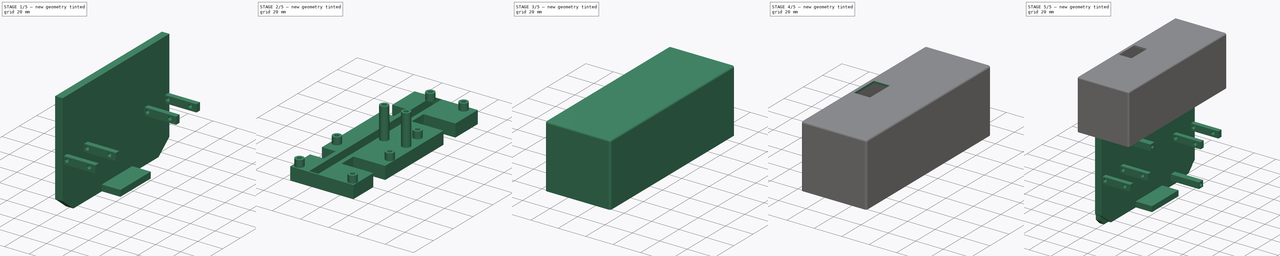
[diagram: build sequence overview — one tinted view per stage of 5, left to right]
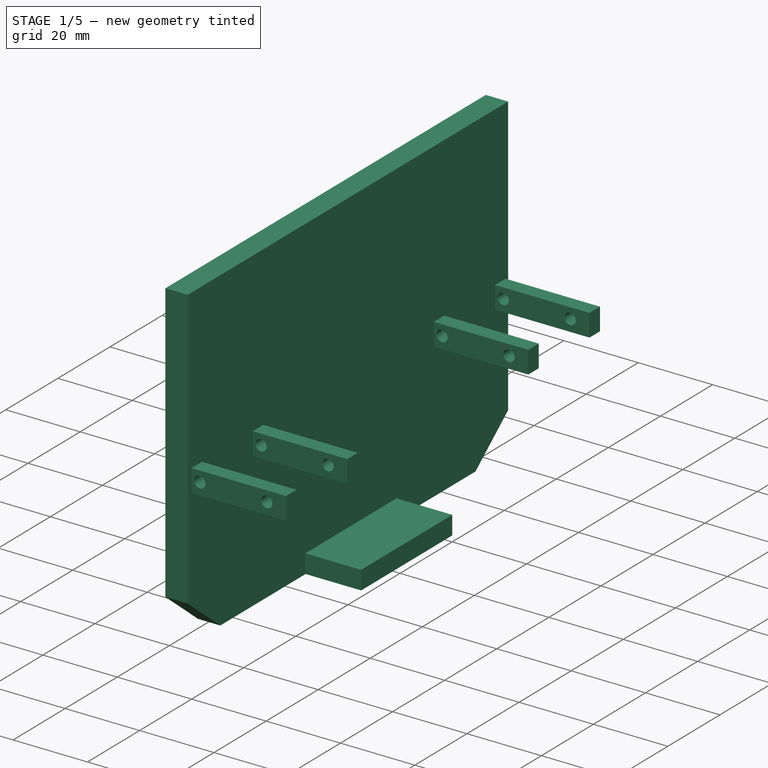
[diagram: stage 1 of 5 — iso view after this stage's code; geometry added in this stage tinted green]
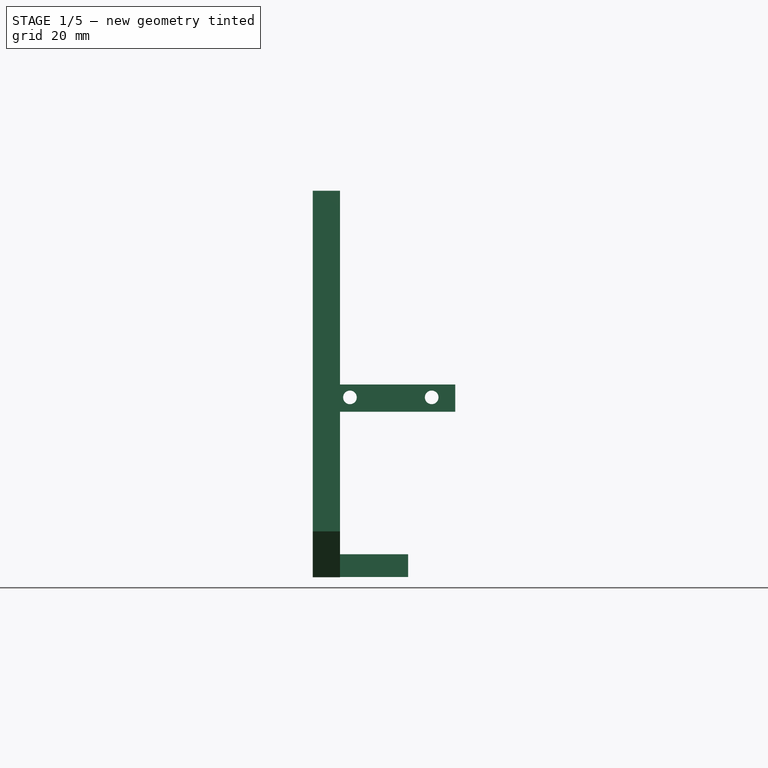
[diagram: stage 1 of 5 — front view after this stage's code; geometry added in this stage tinted green]
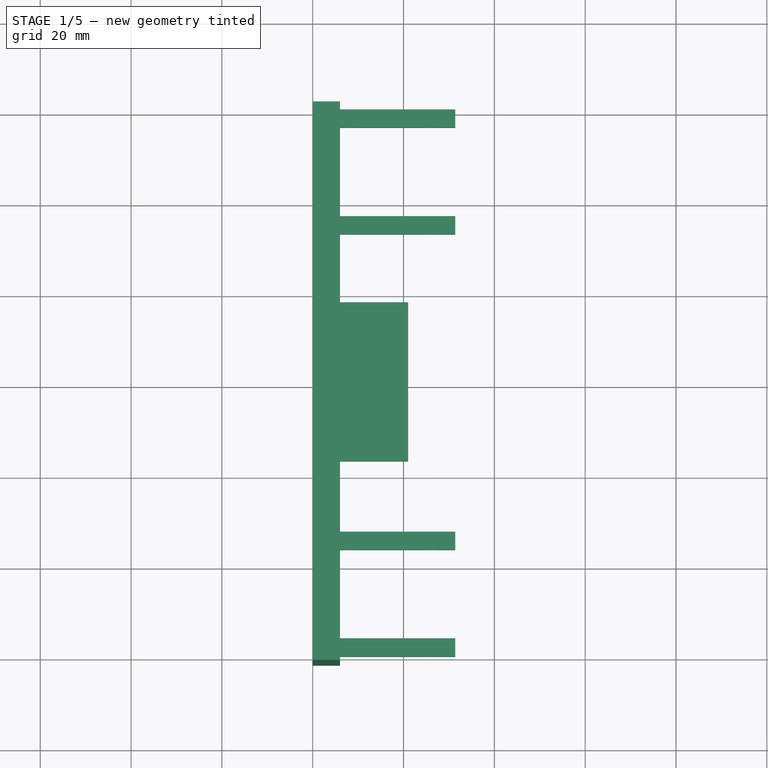
[diagram: stage 1 of 5 — top view after this stage's code; geometry added in this stage tinted green]
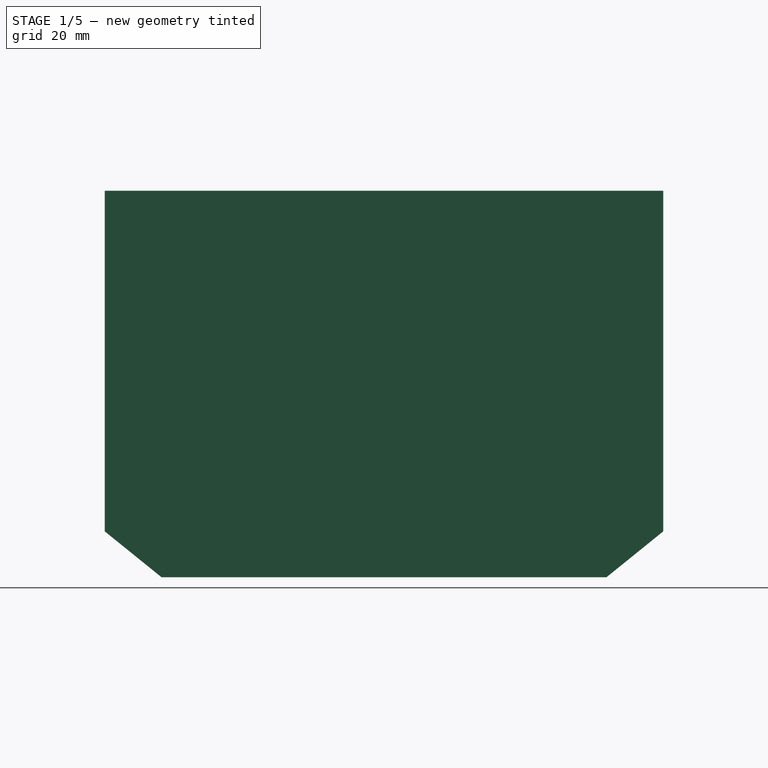
[diagram: stage 1 of 5 — right view after this stage's code; geometry added in this stage tinted green]
FCSTD DOCUMENT  (FreeCAD 0.20R29603 (Git))
Label: self_balancing_robot
License: All rights reserved
LicenseURL: http://en.wikipedia.org/wiki/All_rights_reserved
objects: Part::Feature×94, App::Part×36, Sketcher::SketchObject×15, PartDesign::Pad×11, PartDesign::Pocket×4, PartDesign::Body×4, PartDesign::ShapeBinder×3, PartDesign::Thickness×1, PartDesign::Hole×1, PartDesign::Chamfer×1, PartDesign::Fillet×1
note: 154 computed .brp shape members not serialized (recipe doc carries the construction recipe); baked Part::Feature solids carry a one-line shape summary decoded from their .brp

FEATURE [Part::Feature] Part__Feature002  label="cell"
  Placement = pos=(0,0,0) rot=(-1,0,0;1.5708rad)
  shape: bbox 19.5 x 65.01 x 19.5 mm, 44 faces, 4 solids (baked)
FEATURE [Part::Feature] Part__Feature003  label="PCB"
  Placement = pos=(0,0,0) rot=(0.707107,0,0.707107;3.14159rad)
  shape: bbox 28.15 x 51.5 x 1.6 mm, 82 faces (baked)
FEATURE [Part::Feature] Part__Feature004  label="SOLID"
  shape: bbox 2.545 x 13.54 x 2.5 mm, 61 faces (baked)
FEATURE [Part::Feature] Part__Feature005  label="COMPOUND"
  shape: bbox 2e-07 x 13.54 x 2e-07 mm, 0 faces, 0 solids (baked)
FEATURE [App::Part] PIN
  Group = -> [Part__Feature004,Part__Feature005]
  Origin = -> Origin003
  Placement = pos=(12.7,-8.03,0) rot=(0.57735,0.57735,-0.57735;4.18879rad)
FEATURE [Part::Feature] Part__Feature006  label="SOLID001"
  shape: bbox 2.545 x 13.54 x 2.5 mm, 61 faces (baked)
FEATURE [Part::Feature] Part__Feature007  label="COMPOUND001"
  shape: bbox 2e-07 x 13.54 x 2e-07 mm, 0 faces, 0 solids (baked)
FEATURE [App::Part] PIN001
  Group = -> [Part__Feature006,Part__Feature007]
  Origin = -> Origin004
  Placement = pos=(12.7,-5.49,0) rot=(0.57735,0.57735,-0.57735;4.18879rad)
FEATURE [Part::Feature] Part__Feature008  label="SOLID002"
  shape: bbox 2.545 x 13.54 x 2.5 mm, 61 faces (baked)
FEATURE [Part::Feature] Part__Feature009  label="COMPOUND002"
  shape: bbox 2e-07 x 13.54 x 2e-07 mm, 0 faces, 0 solids (baked)
FEATURE [App::Part] PIN002
  Group = -> [Part__Feature008,Part__Feature009]
  Origin = -> Origin005
  Placement = pos=(12.7,-2.95,0) rot=(0.57735,0.57735,-0.57735;4.18879rad)
FEATURE [Part::Feature] Part__Feature010  label="SOLID003"
  shape: bbox 2.545 x 13.54 x 2.5 mm, 61 faces (baked)
FEATURE [Part::Feature] Part__Feature011  label="COMPOUND003"
  shape: bbox 2e-07 x 13.54 x 2e-07 mm, 0 faces, 0 solids (baked)
FEATURE [App::Part] PIN003
  Group = -> [Part__Feature010,Part__Feature011]
  Origin = -> Origin006
  Placement = pos=(12.7,-0.41,0) rot=(0.57735,0.57735,-0.57735;4.18879rad)
FEATURE [Part::Feature] Part__Feature012  label="SOLID004"
  shape: bbox 2.545 x 13.54 x 2.5 mm, 61 faces (baked)
FEATURE [Part::Feature] Part__Feature013  label="COMPOUND004"
  shape: bbox 2e-07 x 13.54 x 2e-07 mm, 0 faces, 0 solids (baked)
FEATURE [App::Part] PIN004
  Group = -> [Part__Feature012,Part__Feature013]
  Origin = -> Origin007
  Placement = pos=(12.7,2.13,0) rot=(0.57735,0.57735,-0.57735;4.18879rad)
FEATURE [Part::Feature] Part__Feature014  label="SOLID005"
  shape: bbox 2.545 x 13.54 x 2.5 mm, 61 faces (baked)
FEATURE [Part::Feature] Part__Feature015  label="COMPOUND005"
  shape: bbox 2e-07 x 13.54 x 2e-07 mm, 0 faces, 0 solids (baked)
FEATURE [App::Part] PIN005
  Group = -> [Part__Feature014,Part__Feature015]
  Origin = -> Origin008
  Placement = pos=(12.7,4.67,0) rot=(0.57735,0.57735,-0.57735;4.18879rad)
FEATURE [Part::Feature] Part__Feature016  label="SOLID006"
  shape: bbox 2.545 x 13.54 x 2.5 mm, 61 faces (baked)
FEATURE [Part::Feature] Part__Feature017  label="COMPOUND006"
  shape: bbox 2e-07 x 13.54 x 2e-07 mm, 0 faces, 0 solids (baked)
FEATURE [App::Part] PIN006
  Group = -> [Part__Feature016,Part__Feature017]
  Origin = -> Origin009
  Placement = pos=(12.7,7.21,0) rot=(0.57735,0.57735,-0.57735;4.18879rad)
FEATURE [Part::Feature] Part__Feature018  label="SOLID007"
  shape: bbox 2.545 x 13.54 x 2.5 mm, 61 faces (baked)
FEATURE [Part::Feature] Part__Feature019  label="COMPOUND007"
  shape: bbox 2e-07 x 13.54 x 2e-07 mm, 0 faces, 0 solids (baked)
FEATURE [App::Part] PIN007
  Group = -> [Part__Feature018,Part__Feature019]
  Origin = -> Origin010
  Placement = pos=(12.7,9.75,0) rot=(0.57735,0.57735,-0.57735;4.18879rad)
FEATURE [Part::Feature] Part__Feature020  label="SOLID008"
  shape: bbox 2.545 x 13.54 x 2.5 mm, 61 faces (baked)
FEATURE [Part::Feature] Part__Feature021  label="COMPOUND008"
  shape: bbox 2e-07 x 13.54 x 2e-07 mm, 0 faces, 0 solids (baked)
FEATURE [App::Part] PIN008
  Group = -> [Part__Feature020,Part__Feature021]
  Origin = -> Origin011
  Placement = pos=(12.7,12.29,0) rot=(0.57735,0.57735,-0.57735;4.18879rad)
FEATURE [Part::Feature] Part__Feature022  label="SOLID009"
  shape: bbox 2.545 x 13.54 x 2.5 mm, 61 faces (baked)
FEATURE [Part::Feature] Part__Feature023  label="COMPOUND009"
  shape: bbox 2e-07 x 13.54 x 2e-07 mm, 0 faces, 0 solids (baked)
FEATURE [App::Part] PIN009
  Group = -> [Part__Feature022,Part__Feature023]
  Origin = -> Origin012
  Placement = pos=(12.7,14.83,0) rot=(0.57735,0.57735,-0.57735;4.18879rad)
FEATURE [Part::Feature] Part__Feature024  label="SOLID010"
  shape: bbox 2.545 x 13.54 x 2.5 mm, 61 faces (baked)
FEATURE [Part::Feature] Part__Feature025  label="COMPOUND010"
  shape: bbox 2e-07 x 13.54 x 2e-07 mm, 0 faces, 0 solids (baked)
FEATURE [App::Part] PIN010
  Group = -> [Part__Feature024,Part__Feature025]
  Origin = -> Origin013
  Placement = pos=(12.7,17.37,0) rot=(0.57735,0.57735,-0.57735;4.18879rad)
FEATURE [Part::Feature] Part__Feature026  label="SOLID011"
  shape: bbox 2.545 x 13.54 x 2.5 mm, 61 faces (baked)
FEATURE [Part::Feature] Part__Feature027  label="COMPOUND011"
  shape: bbox 2e-07 x 13.54 x 2e-07 mm, 0 faces, 0 solids (baked)
FEATURE [App::Part] PIN011
  Group = -> [Part__Feature026,Part__Feature027]
  Origin = -> Origin014
  Placement = pos=(12.7,19.91,0) rot=(0.57735,0.57735,-0.57735;4.18879rad)
FEATURE [Part::Feature] Part__Feature028  label="SOLID012"
  shape: bbox 2.545 x 13.54 x 2.5 mm, 61 faces (baked)
FEATURE [Part::Feature] Part__Feature029  label="COMPOUND012"
  shape: bbox 2e-07 x 13.54 x 2e-07 mm, 0 faces, 0 solids (baked)
FEATURE [App::Part] PIN012
  Group = -> [Part__Feature028,Part__Feature029]
  Origin = -> Origin015
  Placement = pos=(12.7,22.45,0) rot=(0.57735,0.57735,-0.57735;4.18879rad)
FEATURE [Part::Feature] Part__Feature030  label="SOLID013"
  shape: bbox 2.545 x 13.54 x 2.5 mm, 61 faces (baked)
FEATURE [Part::Feature] Part__Feature031  label="COMPOUND013"
  shape: bbox 2e-07 x 13.54 x 2e-07 mm, 0 faces, 0 solids (baked)
FEATURE [App::Part] PIN013
  Group = -> [Part__Feature030,Part__Feature031]
  Origin = -> Origin016
  Placement = pos=(12.7,24.99,0) rot=(0.57735,0.57735,-0.57735;4.18879rad)
FEATURE [Part::Feature] Part__Feature032  label="SOLID014"
  shape: bbox 2.545 x 13.54 x 2.5 mm, 61 faces (baked)
FEATURE [Part::Feature] Part__Feature033  label="COMPOUND014"
  shape: bbox 2e-07 x 13.54 x 2e-07 mm, 0 faces, 0 solids (baked)
FEATURE [App::Part] PIN014
  Group = -> [Part__Feature032,Part__Feature033]
  Origin = -> Origin017
  Placement = pos=(12.7,27.53,0) rot=(0.57735,0.57735,-0.57735;4.18879rad)
FEATURE [Part::Feature] Part__Feature034  label="SOLID015"
  shape: bbox 2.545 x 13.54 x 2.5 mm, 61 faces (baked)
FEATURE [Part::Feature] Part__Feature035  label="COMPOUND015"
  shape: bbox 2e-07 x 13.54 x 2e-07 mm, 0 faces, 0 solids (baked)
FEATURE [App::Part] PIN015
  Group = -> [Part__Feature034,Part__Feature035]
  Origin = -> Origin018
  Placement = pos=(-12.7,27.53,0) rot=(0.57735,-0.57735,0.57735;4.18879rad)
FEATURE [Part::Feature] Part__Feature036  label="SOLID016"
  shape: bbox 2.545 x 13.54 x 2.5 mm, 61 faces (baked)
FEATURE [Part::Feature] Part__Feature037  label="COMPOUND016"
  shape: bbox 2e-07 x 13.54 x 2e-07 mm, 0 faces, 0 solids (baked)
FEATURE [App::Part] PIN016
  Group = -> [Part__Feature036,Part__Feature037]
  Origin = -> Origin019
  Placement = pos=(-12.7,30.07,0) rot=(0.57735,-0.57735,0.57735;4.18879rad)
FEATURE [Part::Feature] Part__Feature038  label="SOLID017"
  shape: bbox 2.545 x 13.54 x 2.5 mm, 61 faces (baked)
FEATURE [Part::Feature] Part__Feature039  label="COMPOUND017"
  shape: bbox 2e-07 x 13.54 x 2e-07 mm, 0 faces, 0 solids (baked)
FEATURE [App::Part] PIN017
  Group = -> [Part__Feature038,Part__Feature039]
  Origin = -> Origin020
  Placement = pos=(-12.7,32.61,0) rot=(0.57735,-0.57735,0.57735;4.18879rad)
FEATURE [Part::Feature] Part__Feature040  label="SOLID018"
  shape: bbox 2.545 x 13.54 x 2.5 mm, 61 faces (baked)
FEATURE [Part::Feature] Part__Feature041  label="COMPOUND018"
  shape: bbox 2e-07 x 13.54 x 2e-07 mm, 0 faces, 0 solids (baked)
FEATURE [App::Part] PIN018
  Group = -> [Part__Feature040,Part__Feature041]
  Origin = -> Origin021
  Placement = pos=(-12.7,35.15,0) rot=(0.57735,-0.57735,0.57735;4.18879rad)
FEATURE [Part::Feature] Part__Feature042  label="SOLID019"
  shape: bbox 2.545 x 13.54 x 2.5 mm, 61 faces (baked)
FEATURE [Part::Feature] Part__Feature043  label="COMPOUND019"
  shape: bbox 2e-07 x 13.54 x 2e-07 mm, 0 faces, 0 solids (baked)
FEATURE [App::Part] PIN019
  Group = -> [Part__Feature042,Part__Feature043]
  Origin = -> Origin022
  Placement = pos=(-12.7,37.69,0) rot=(0.57735,-0.57735,0.57735;4.18879rad)
FEATURE [Part::Feature] Part__Feature044  label="SOLID020"
  shape: bbox 2.545 x 13.54 x 2.5 mm, 61 faces (baked)
FEATURE [Part::Feature] Part__Feature045  label="COMPOUND020"
  shape: bbox 2e-07 x 13.54 x 2e-07 mm, 0 faces, 0 solids (baked)
FEATURE [App::Part] PIN020
  Group = -> [Part__Feature044,Part__Feature045]
  Origin = -> Origin023
  Placement = pos=(-12.7,40.23,0) rot=(0.57735,-0.57735,0.57735;4.18879rad)
FEATURE [Part::Feature] Part__Feature046  label="SOLID021"
  shape: bbox 2.545 x 13.54 x 2.5 mm, 61 faces (baked)
FEATURE [Part::Feature] Part__Feature047  label="COMPOUND021"
  shape: bbox 2e-07 x 13.54 x 2e-07 mm, 0 faces, 0 solids (baked)
FEATURE [App::Part] PIN021
  Group = -> [Part__Feature046,Part__Feature047]
  Origin = -> Origin024
  Placement = pos=(-12.7,42.77,0) rot=(0.57735,-0.57735,0.57735;4.18879rad)
FEATURE [Part::Feature] Part__Feature048  label="SOLID022"
  shape: bbox 2.545 x 13.54 x 2.5 mm, 61 faces (baked)
FEATURE [Part::Feature] Part__Feature049  label="COMPOUND022"
  shape: bbox 2e-07 x 13.54 x 2e-07 mm, 0 faces, 0 solids (baked)
FEATURE [App::Part] PIN022
  Group = -> [Part__Feature048,Part__Feature049]
  Origin = -> Origin025
  Placement = pos=(-12.7,45.31,0) rot=(0.57735,-0.57735,0.57735;4.18879rad)
FEATURE [Part::Feature] Part__Feature050  label="SOLID023"
  shape: bbox 2.545 x 13.54 x 2.5 mm, 61 faces (baked)
FEATURE [Part::Feature] Part__Feature051  label="COMPOUND023"
  shape: bbox 2e-07 x 13.54 x 2e-07 mm, 0 faces, 0 solids (baked)
FEATURE [App::Part] PIN023
  Group = -> [Part__Feature050,Part__Feature051]
  Origin = -> Origin026
  Placement = pos=(-12.7,47.85,0) rot=(0.57735,-0.57735,0.57735;4.18879rad)
FEATURE [Part::Feature] Part__Feature052  label="SOLID024"
  shape: bbox 2.545 x 13.54 x 2.5 mm, 61 faces (baked)
FEATURE [Part::Feature] Part__Feature053  label="COMPOUND024"
  shape: bbox 2e-07 x 13.54 x 2e-07 mm, 0 faces, 0 solids (baked)
FEATURE [App::Part] PIN024
  Group = -> [Part__Feature052,Part__Feature053]
  Origin = -> Origin027
  Placement = pos=(-12.7,50.39,0) rot=(0.57735,-0.57735,0.57735;4.18879rad)
FEATURE [Part::Feature] Part__Feature054  label="SOLID025"
  shape: bbox 2.545 x 13.54 x 2.5 mm, 61 faces (baked)
FEATURE [Part::Feature] Part__Feature055  label="COMPOUND025"
  shape: bbox 2e-07 x 13.54 x 2e-07 mm, 0 faces, 0 solids (baked)
FEATURE [App::Part] PIN025
  Group = -> [Part__Feature054,Part__Feature055]
  Origin = -> Origin028
  Placement = pos=(-12.7,52.93,0) rot=(0.57735,-0.57735,0.57735;4.18879rad)
FEATURE [Part::Feature] Part__Feature056  label="SOLID026"
  shape: bbox 2.545 x 13.54 x 2.5 mm, 61 faces (baked)
FEATURE [Part::Feature] Part__Feature057  label="COMPOUND026"
  shape: bbox 2e-07 x 13.54 x 2e-07 mm, 0 faces, 0 solids (baked)
FEATURE [App::Part] PIN026
  Group = -> [Part__Feature056,Part__Feature057]
  Origin = -> Origin029
  Placement = pos=(-12.7,55.47,0) rot=(0.57735,-0.57735,0.57735;4.18879rad)
FEATURE [Part::Feature] Part__Feature058  label="SOLID027"
  shape: bbox 2.545 x 13.54 x 2.5 mm, 61 faces (baked)
FEATURE [Part::Feature] Part__Feature059  label="COMPOUND027"
  shape: bbox 2e-07 x 13.54 x 2e-07 mm, 0 faces, 0 solids (baked)
FEATURE [App::Part] PIN027
  Group = -> [Part__Feature058,Part__Feature059]
  Origin = -> Origin030
  Placement = pos=(-12.7,58.01,0) rot=(0.57735,-0.57735,0.57735;4.18879rad)
FEATURE [Part::Feature] Part__Feature060  label="SOLID028"
  shape: bbox 2.545 x 13.54 x 2.5 mm, 61 faces (baked)
FEATURE [Part::Feature] Part__Feature061  label="COMPOUND028"
  shape: bbox 2e-07 x 13.54 x 2e-07 mm, 0 faces, 0 solids (baked)
FEATURE [App::Part] PIN028
  Group = -> [Part__Feature060,Part__Feature061]
  Origin = -> Origin031
  Placement = pos=(-12.7,60.55,0) rot=(0.57735,-0.57735,0.57735;4.18879rad)
FEATURE [Part::Feature] Part__Feature062  label="SOLID029"
  shape: bbox 2.545 x 13.54 x 2.5 mm, 61 faces (baked)
FEATURE [Part::Feature] Part__Feature063  label="COMPOUND029"
  shape: bbox 2e-07 x 13.54 x 2e-07 mm, 0 faces, 0 solids (baked)
FEATURE [App::Part] PIN029
  Group = -> [Part__Feature062,Part__Feature063]
  Origin = -> Origin032
  Placement = pos=(-12.7,63.09,0) rot=(0.57735,-0.57735,0.57735;4.18879rad)
FEATURE [Part::Feature] Part__Feature064  label="WIFI_CARD_2"
  Placement = pos=(0,27.175,-0.055) rot=(1,0,0;1.5708rad)
  shape: bbox 16 x 24 x 2.812 mm, 339 faces (baked)
FEATURE [Part::Feature] Part__Feature065  label="RECTANGULARCHIP_2"
  Placement = pos=(-3.825,8.35,-0.051) rot=(0,0.707107,0.707107;3.14159rad)
  shape: bbox 7.45 x 6 x 1.65 mm, 41 faces (baked)
FEATURE [Part::Feature] Part__Feature066  label="MICROCHIP_2"
  Placement = pos=(4.825,26.75,-0.052) rot=(1,0,0;1.5708rad)
  shape: bbox 6.2 x 6.2 x 1 mm, 118 faces (baked)
FEATURE [Part::Feature] Part__Feature067  label="TANCHIP_2"
  Placement = pos=(-1.725,10.65,-0.052) rot=(0.57735,-0.57735,-0.57735;2.0944rad)
  shape: bbox 4.966 x 2.9 x 2 mm, 28 faces (baked)
FEATURE [Part::Feature] Part__Feature068  label="TRANSISTOR_3-LEG_2"
  Placement = pos=(0.025,10.5,-0.052) rot=(0.57735,0.57735,0.57735;2.0944rad)
  shape: bbox 2.302 x 3 x 0.7675 mm, 93 faces (baked)
FEATURE [Part::Feature] Part__Feature069  label="RESISTOR1_2"
  Placement = pos=(-5.125,26,-0.051) rot=(0.57735,0.57735,0.57735;2.0944rad)
  shape: bbox 1.007 x 2.222 x 0.4165 mm, 64 faces (baked)
FEATURE [Part::Feature] Part__Feature070  label="RESISTOR1_003"
  Placement = pos=(-3.375,26,-0.051) rot=(0.57735,0.57735,0.57735;2.0944rad)
  shape: bbox 1.007 x 2.222 x 0.4165 mm, 64 faces (baked)
FEATURE [Part::Feature] Part__Feature071  label="RESISTOR1_004"
  Placement = pos=(-1.625,26,-0.051) rot=(0.57735,0.57735,0.57735;2.0944rad)
  shape: bbox 1.007 x 2.222 x 0.4165 mm, 64 faces (baked)
FEATURE [Part::Feature] Part__Feature072  label="RESISTOR1_005"
  Placement = pos=(0.125,26,-0.051) rot=(0.57735,0.57735,0.57735;2.0944rad)
  shape: bbox 1.007 x 2.222 x 0.4165 mm, 64 faces (baked)
FEATURE [Part::Feature] Part__Feature073  label="RESISTOR1_006"
  Placement = pos=(1.875,26,-0.051) rot=(0.57735,0.57735,0.57735;2.0944rad)
  shape: bbox 1.007 x 2.222 x 0.4165 mm, 64 faces (baked)
FEATURE [Part::Feature] Part__Feature074  label="RESISTOR2-32_2"
  Placement = pos=(3.825,31.3,-0.051) rot=(1,0,0;1.5708rad)
  shape: bbox 1.007 x 2.222 x 0.4165 mm, 64 faces (baked)
FEATURE [Part::Feature] Part__Feature075  label="RESISTOR2-32_003"
  Placement = pos=(-6.675,31.3,-0.051) rot=(1,0,0;1.5708rad)
  shape: bbox 1.007 x 2.222 x 0.4165 mm, 64 faces (baked)
FEATURE [Part::Feature] Part__Feature076  label="RESISTOR1_007"
  Placement = pos=(11.575,23,-0.051) rot=(1,0,0;1.5708rad)
  shape: bbox 2.222 x 1.007 x 0.4165 mm, 64 faces (baked)
FEATURE [Part::Feature] Part__Feature077  label="RESISTOR1_008"
  Placement = pos=(11.575,24.2,-0.051) rot=(1,0,0;1.5708rad)
  shape: bbox 2.222 x 1.007 x 0.4165 mm, 64 faces (baked)
FEATURE [Part::Feature] Part__Feature078  label="RESISTOR1_009"
  Placement = pos=(-3.625,23,-0.051) rot=(1,0,0;1.5708rad)
  shape: bbox 2.222 x 1.007 x 0.4165 mm, 64 faces (baked)
FEATURE [Part::Feature] Part__Feature079  label="RESISTOR1_010"
  Placement = pos=(-3.625,24.2,-0.051) rot=(1,0,0;1.5708rad)
  shape: bbox 2.222 x 1.007 x 0.4165 mm, 64 faces (baked)
FEATURE [Part::Feature] Part__Feature080  label="TRANSISTOR_3-LEG2_2"
  Placement = pos=(-12.335,10.54,-0.052) rot=(0.57735,0.57735,0.57735;2.0944rad)
  shape: bbox 2.302 x 3 x 0.7675 mm, 93 faces (baked)
FEATURE [Part::Feature] Part__Feature081  label="RESISTOR1_011"
  Placement = pos=(7.375,21.9,-0.051) rot=(0.57735,0.57735,0.57735;2.0944rad)
  shape: bbox 1.007 x 2.222 x 0.4165 mm, 64 faces (baked)
FEATURE [Part::Feature] Part__Feature082  label="RESISTOR1_012"
  Placement = pos=(-3.375,21.9,-0.051) rot=(0.57735,0.57735,0.57735;2.0944rad)
  shape: bbox 1.007 x 2.222 x 0.4165 mm, 64 faces (baked)
FEATURE [Part::Feature] Part__Feature083  label="BUTTONFLASH-13_2"
  shape: bbox 1.894 x 0.75 x 1.894 mm, 6 faces (baked)
FEATURE [Part::Feature] Part__Feature084  label="BUTTONFLASH-14_2"
  shape: bbox 3 x 1.7 x 5.54 mm, 33 faces (baked)
FEATURE [App::Part] BUTTON_R_ASM
  Group = -> [Part__Feature083,Part__Feature084]
  Origin = -> Origin033
  Placement = pos=(-14.325,24.4,0) rot=(1,0,0;1.5708rad)
FEATURE [Part::Feature] Part__Feature085  label="BUTTONFLASH-13_003"
  shape: bbox 1.894 x 0.75 x 1.894 mm, 6 faces (baked)
FEATURE [Part::Feature] Part__Feature086  label="BUTTONFLASH-14_003"
  shape: bbox 3 x 1.7 x 5.54 mm, 33 faces (baked)
FEATURE [App::Part] BUTTON_R_ASM001
  Group = -> [Part__Feature085,Part__Feature086]
  Origin = -> Origin034
  Placement = pos=(1.825,24.4,0) rot=(1,0,0;1.5708rad)
FEATURE [Part::Feature] Part__Feature087  label="USB_SOCKET_2"
  Placement = pos=(0,24.41,-0.06) rot=(1,0,0;1.5708rad)
  shape: bbox 8.159 x 5.683 x 3.045 mm, 291 faces (baked)
FEATURE [App::Part] ESP32_DEV_KIT_V1_ASM  label="esp32_dev"
  Group = -> [Part__Feature003,PIN,PIN001,PIN002,PIN003,PIN004,PIN005,PIN006,PIN007,PIN008,PIN009,PIN010,PIN011,PIN012,PIN013,PIN014,PIN015,PIN016,PIN017,PIN018,PIN019,PIN020,PIN021,PIN022,PIN023,PIN024,PIN025,PIN026,PIN027,PIN028,PIN029,Part__Feature064,Part__Feature065,Part__Feature066,Part__Feature067,Part__Feature068,Part__Feature069,Part__Feature070,Part__Feature071,Part__Feature072,Part__Feature073,+12 more]
  Origin = -> Origin035
  Placement = pos=(13,9,75) rot=(0,1,0;3.14159rad)
FEATURE [Part::Feature] Part__Feature089  label="wheel_right"
  Placement = pos=(18,88,-8e-15) rot=(-1,0,0;1.5708rad)
  shape: bbox 69.04 x 30 x 69 mm, 803 faces, 2 solids (baked)
FEATURE [Part::Feature] Part__Feature093  label="cell001"
  Placement = pos=(18,0,0) rot=(-1,0,0;1.5708rad)
  shape: bbox 19.5 x 65.01 x 19.5 mm, 44 faces, 4 solids (baked)
FEATURE [Part::Feature] Part__Feature094  label="cell002"
  Placement = pos=(36,0,0) rot=(-1,0,0;1.5708rad)
  shape: bbox 19.5 x 65.01 x 19.5 mm, 44 faces, 4 solids (baked)
FEATURE [Part::Feature] Part__Feature095  label="L298N Motor Driver001"
  Placement = pos=(10,-41,71) rot=(1,0,0;1.5708rad)
  shape: bbox 43.5 x 43.5 x 26 mm, 749 faces, 21 solids (baked)
FEATURE [App::Part] Part002  label="battery"
  Group = -> [Part__Feature094,Part__Feature093,Part__Feature002]
  Origin = -> Origin037
  Placement = pos=(14,-18,-13) rot=(0.57735,0.57735,0.57735;2.0944rad)
FEATURE [Part::Feature] Part__Feature090  label="motor_right"
  Placement = pos=(6,56,25) rot=(0,0,-1;1.5708rad)
  shape: bbox 24.26 x 37.11 x 70.36 mm, 606 faces, 10 solids (baked)
FEATURE [Part::Feature] Part__Feature  label="mpu"
  Placement = pos=(11,20,77) rot=(1,0,0;1.5708rad)
  shape: bbox 21.12 x 15.89 x 11.19 mm, 1123 faces, 23 solids (baked)
FEATURE [Sketcher::SketchObject] Sketch
  FullyConstrained = true
  MapMode = 5
  Placement = pos=(0,0,0) rot=(0.57735,0.57735,0.57735;2.0944rad)
  Support = -> [YZ_Plane038]
  sketch-geometry (6):
    g0: LineSegment StartX=-61.51 StartY=65.6 StartZ=0 EndX=61.49 EndY=65.6 EndZ=0
    g1: LineSegment StartX=61.49 StartY=65.6 StartZ=0 EndX=61.49 EndY=-9.4 EndZ=0
    g2: LineSegment StartX=-61.51 StartY=-9.4 StartZ=0 EndX=-61.51 EndY=65.6 EndZ=0
    g3: LineSegment StartX=-61.51 StartY=-9.4 StartZ=0 EndX=-49 EndY=-19.5087 EndZ=0
    g4: LineSegment StartX=-49 StartY=-19.5087 StartZ=0 EndX=48.98 EndY=-19.5087 EndZ=0
    g5: LineSegment StartX=48.98 StartY=-19.5087 StartZ=0 EndX=61.49 EndY=-9.4 EndZ=0
  constraints (18):
    c: Coincident(g0,g1)
    c: Coincident(g2,g0)
    c: Horizontal(g0)
    c: Vertical(g1)
    c: Vertical(g2)
    c: Coincident(g4,g3)
    c: Horizontal(g4)
    c: Coincident(g5,g4)
    c: Coincident(g1,g5)
    c: Coincident(g2,g3)
    c: DistanceX(g0,g0) = 123
    c: DistanceY(g1,g1) = 75
    c: Equal(g2,g1)
    c: DistanceX(g2,g3) = 12.51
    c: Equal(g3,g5)
    c: DistanceY(g-1,g0) = 65.6
    c: Angle(g5,g3) = 1.78233
    c: DistanceX(g-1,g0) = 61.49
FEATURE [Part::Feature] Part__Feature096  label="motor_left"
  Placement = pos=(6,-37,25) rot=(0,0,-1;1.5708rad)
  shape: bbox 24.26 x 37.11 x 70.36 mm, 606 faces, 10 solids (baked)
FEATURE [Part::Feature] Part__Feature097  label="wheel_left"
  Placement = pos=(18,-88,-4.7e-14) rot=(1,0,0;1.5708rad)
  shape: bbox 69.04 x 30 x 69 mm, 803 faces, 2 solids (baked)
FEATURE [App::Part] Part001  label="Components"
  Group = -> [Part__Feature090,Part__Feature089,ESP32_DEV_KIT_V1_ASM,Part__Feature095,Part002,Part__Feature,Part__Feature097,Part__Feature096]
  Origin = -> Origin036
FEATURE [PartDesign::Pad] Pad
  Direction = (1,-2e-16,3e-16)
  Length = 6
  Length2 = 10
  Placement = pos=(0,0,0) rot=(0.57735,0.57735,0.57735;2.0944rad)
  Profile = -> Sketch
  ReferenceAxis = -> Sketch [N_Axis]
  Type = 0
FEATURE [Sketcher::SketchObject] Sketch001
  FullyConstrained = false
  MapMode = 5
  Placement = pos=(6,-1.3e-15,1.3e-15) rot=(0.57735,0.57735,0.57735;2.0944rad)
  Support = -> [Pad]
  sketch-geometry (16):
    g0: LineSegment StartX=36.9747 StartY=22.94 StartZ=0 EndX=32.9747 EndY=22.94 EndZ=0
    g1: LineSegment StartX=32.9747 StartY=22.94 StartZ=0 EndX=32.9747 EndY=16.94 EndZ=0
    g2: LineSegment StartX=32.9747 StartY=16.94 StartZ=0 EndX=36.9747 EndY=16.94 EndZ=0
    g3: LineSegment StartX=36.9747 StartY=16.94 StartZ=0 EndX=36.9747 EndY=22.94 EndZ=0
    g4: LineSegment StartX=60.4747 StartY=22.94 StartZ=0 EndX=56.4747 EndY=22.94 EndZ=0
    g5: LineSegment StartX=56.4747 StartY=22.94 StartZ=0 EndX=56.4747 EndY=16.94 EndZ=0
    g6: LineSegment StartX=56.4747 StartY=16.94 StartZ=0 EndX=60.4747 EndY=16.94 EndZ=0
    g7: LineSegment StartX=60.4747 StartY=16.94 StartZ=0 EndX=60.4747 EndY=22.94 EndZ=0
    g8: LineSegment StartX=-32.5172 StartY=22.94 StartZ=0 EndX=-36.5172 EndY=22.94 EndZ=0
    g9: LineSegment StartX=-36.5172 StartY=22.94 StartZ=0 EndX=-36.5172 EndY=16.94 EndZ=0
    g10: LineSegment StartX=-36.5172 StartY=16.94 StartZ=0 EndX=-32.5172 EndY=16.94 EndZ=0
    g11: LineSegment StartX=-32.5172 StartY=16.94 StartZ=0 EndX=-32.5172 EndY=22.94 EndZ=0
    g12: LineSegment StartX=-56.0172 StartY=22.94 StartZ=0 EndX=-60.0172 EndY=22.94 EndZ=0
    g13: LineSegment StartX=-60.0172 StartY=22.94 StartZ=0 EndX=-60.0172 EndY=16.94 EndZ=0
    g14: LineSegment StartX=-60.0172 StartY=16.94 StartZ=0 EndX=-56.0172 EndY=16.94 EndZ=0
    g15: LineSegment StartX=-56.0172 StartY=16.94 StartZ=0 EndX=-56.0172 EndY=22.94 EndZ=0
  constraints (46):
    c: Coincident(g0,g1)
    c: Coincident(g1,g2)
    c: Coincident(g2,g3)
    c: Coincident(g3,g0)
    c: Horizontal(g0)
    c: Horizontal(g2)
    c: Vertical(g1)
    c: Vertical(g3)
    c: DistanceX(g2,g2) = 4
    c: DistanceY(g1,g1) = 6
    c: Coincident(g4,g5)
    c: Coincident(g5,g6)
    c: Coincident(g6,g7)
    c: Coincident(g7,g4)
    c: Horizontal(g4)
    c: Horizontal(g6)
    c: Vertical(g5)
    c: Vertical(g7)
    c: Equal(g2,g6) = 4
    c: Equal(g1,g5) = 6
    c: Coincident(g8,g9)
    c: Coincident(g9,g10)
    c: Coincident(g10,g11)
    c: Coincident(g11,g8)
    c: Horizontal(g8)
    c: Horizontal(g10)
    c: Vertical(g9)
    c: Vertical(g11)
    c: Equal(g2,g10) = 4
    c: Equal(g1,g9) = 6
    c: Coincident(g12,g13)
    c: Coincident(g13,g14)
    c: Coincident(g14,g15)
    c: Coincident(g15,g12)
    c: Horizontal(g12)
    c: Horizontal(g14)
    c: Vertical(g13)
    c: Vertical(g15)
    c: Equal(g10,g14)
    c: Equal(g11,g15)
    c: Horizontal(g0,g4)
    c: Horizontal(g0,g8)
    c: Horizontal(g8,g12)
    c: DistanceX(g0,g4) = 19.5
    c: DistanceY(g-1,g0) = 22.94
    c: DistanceX(g12,g8) = 19.5
FEATURE [PartDesign::Pad] Pad001
  BaseFeature = -> Pad
  Direction = (1,-4e-16,4e-16)
  Length = 10
  Length2 = 10
  Offset = 3
  Placement = pos=(0,0,0) rot=(0.57735,0.57735,0.57735;2.0944rad)
  Profile = -> Sketch001
  ReferenceAxis = -> Sketch001 [N_Axis]
  Type = 3
  UpToFace = -> Part__Feature090 [Face168]
FEATURE [PartDesign::ShapeBinder] ShapeBinder
  Placement = pos=(6,56,25) rot=(0,0,-1;1.5708rad)
  Support = -> [Part__Feature090]
  TraceSupport = false
FEATURE [Sketcher::SketchObject] Sketch002
  ExternalGeometry = -> [ShapeBinder]
  FullyConstrained = true
  MapMode = 5
  Placement = pos=(2.21e-14,32.9747,0) rot=(0.57735,0.57735,-0.57735;2.0944rad)
  Support = -> [Pad001]
  sketch-geometry (2):
    g0: Circle CenterX=-20.1 CenterY=26.2 CenterZ=0 NormalX=0 NormalY=0 NormalZ=1 AngleXU=0 Radius=1.5
    g1: Circle CenterX=-20.1 CenterY=8.2 CenterZ=0 NormalX=0 NormalY=0 NormalZ=1 AngleXU=0 Radius=1.5
  constraints (4):
    c: Coincident(g0,g-3)
    c: Coincident(g1,g-4)
    c: Diameter(g0) = 3
    c: Diameter(g1) = 3
FEATURE [PartDesign::Pocket] Pocket
  BaseFeature = -> Pad001
  Direction = (5e-16,1,-3e-16)
  Length = 100
  Length2 = 100
  Placement = pos=(0,0,0) rot=(0.57735,0.57735,0.57735;2.0944rad)
  Profile = -> Sketch002
  ReferenceAxis = -> Sketch002 [N_Axis]
  Type = 4
FEATURE [Sketcher::SketchObject] Sketch003
  FullyConstrained = false
  MapMode = 5
  Placement = pos=(6,-1.3e-15,1.3e-15) rot=(0.57735,0.57735,0.57735;2.0944rad)
  Support = -> [Pocket]
  sketch-geometry (4):
    g0: LineSegment StartX=-16.3586 StartY=-19.4501 StartZ=0 EndX=18.6414 EndY=-19.4501 EndZ=0
    g1: LineSegment StartX=18.6414 StartY=-19.4501 StartZ=0 EndX=18.6414 EndY=-14.4501 EndZ=0
    g2: LineSegment StartX=18.6414 StartY=-14.4501 StartZ=0 EndX=-16.3586 EndY=-14.4501 EndZ=0
    g3: LineSegment StartX=-16.3586 StartY=-14.4501 StartZ=0 EndX=-16.3586 EndY=-19.4501 EndZ=0
  constraints (10):
    c: Coincident(g0,g1)
    c: Coincident(g1,g2)
    c: Coincident(g2,g3)
    c: Coincident(g3,g0)
    c: Horizontal(g0)
    c: Horizontal(g2)
    c: Vertical(g1)
    c: Vertical(g3)
    c: DistanceX(g0,g0) = 35
    c: DistanceY(g1,g1) = 5
FEATURE [PartDesign::Pad] Pad002
  BaseFeature = -> Pocket
  Direction = (1,-8e-16,6e-16)
  Length = 15
  Length2 = 10
  Placement = pos=(0,0,0) rot=(0.57735,0.57735,0.57735;2.0944rad)
  Profile = -> Sketch003
  ReferenceAxis = -> Sketch003 [N_Axis]
  Type = 0
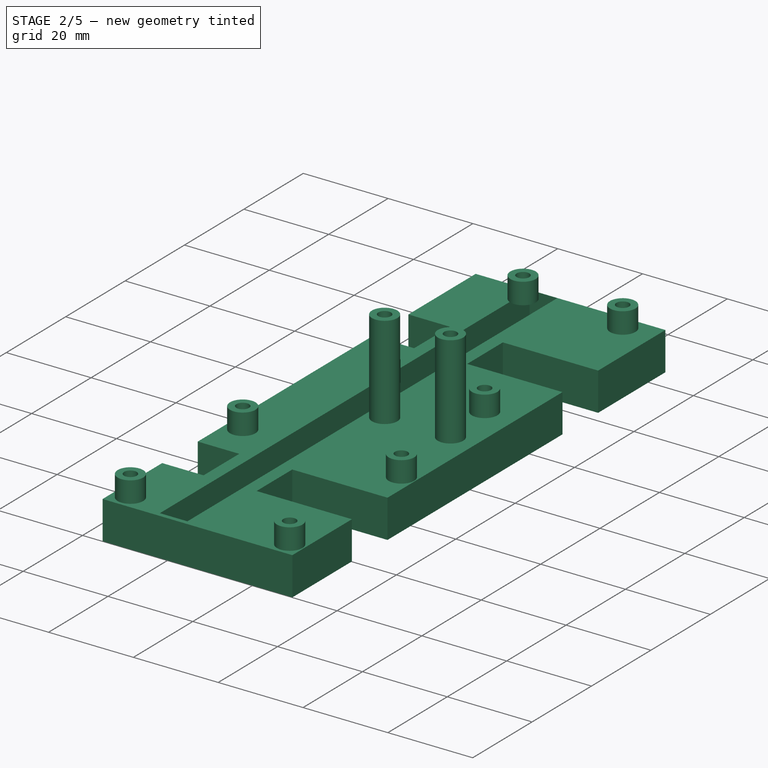
[diagram: stage 2 of 5 — iso view after this stage's code; geometry added in this stage tinted green]
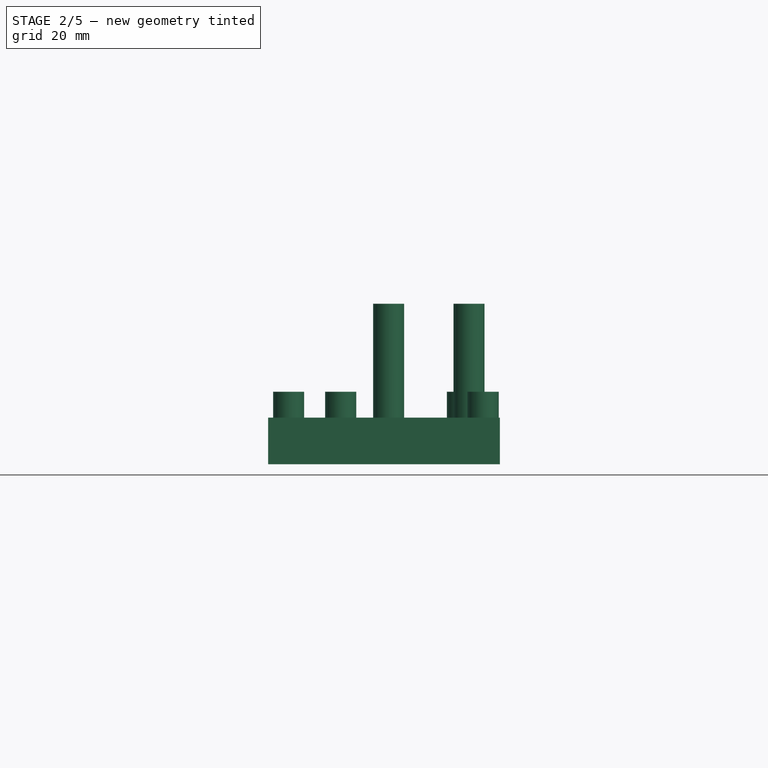
[diagram: stage 2 of 5 — front view after this stage's code; geometry added in this stage tinted green]
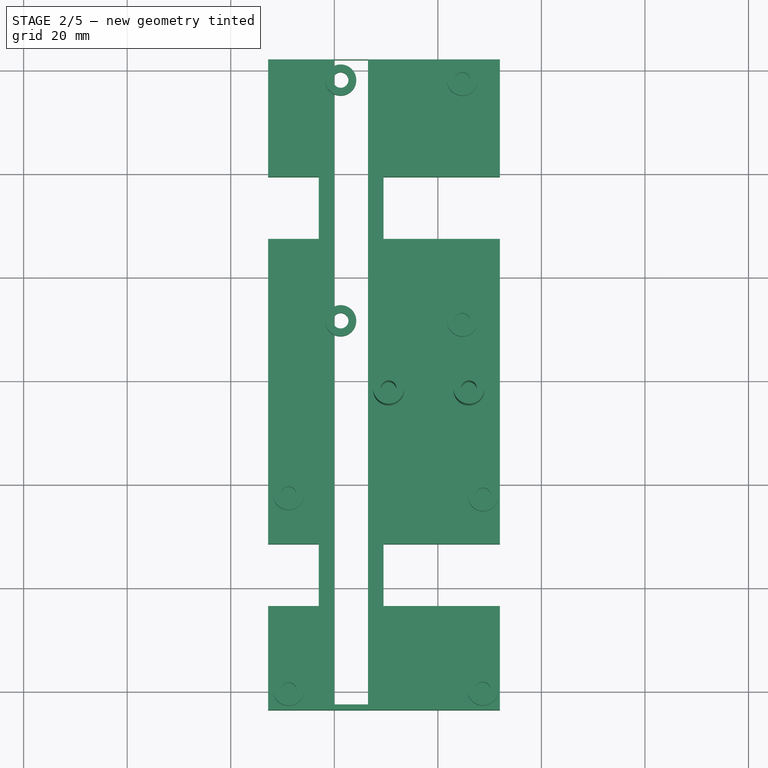
[diagram: stage 2 of 5 — top view after this stage's code; geometry added in this stage tinted green]
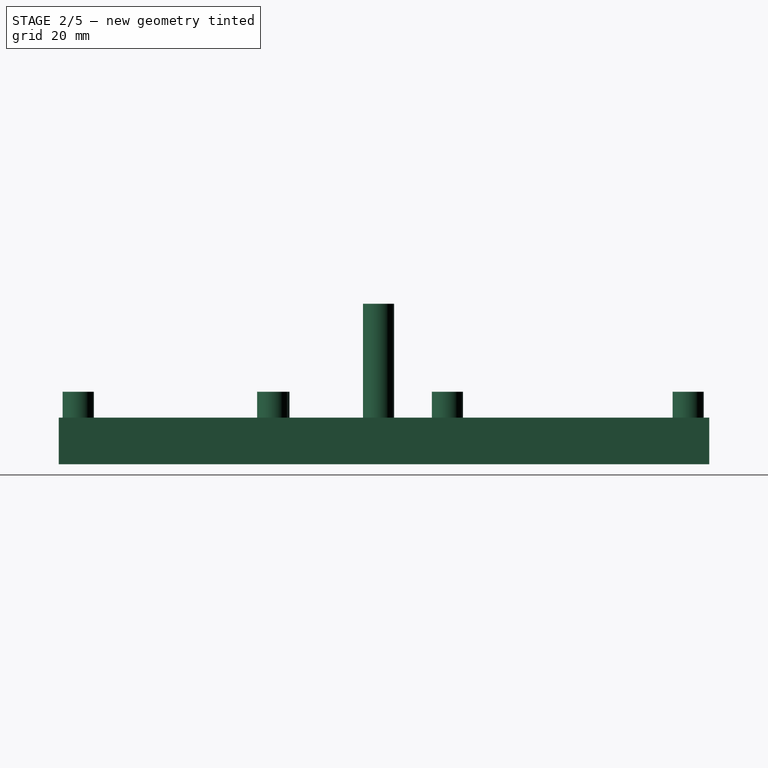
[diagram: stage 2 of 5 — right view after this stage's code; geometry added in this stage tinted green]
FEATURE [PartDesign::ShapeBinder] ShapeBinder001
  Placement = pos=(0,0,0) rot=(0.57735,0.57735,0.57735;2.0944rad)
  Support = -> [Pad002]
  TraceSupport = false
FEATURE [Sketcher::SketchObject] Sketch004
  FullyConstrained = false
  MapMode = 5
  Placement = pos=(-2.57e-14,2.16e-14,65.6) rot=(0,0,-1;1.5708rad)
  Support = -> [ShapeBinder001]
  sketch-geometry (4):
    g0: LineSegment StartX=-62.0593 StartY=31.9691 StartZ=0 EndX=63.5688 EndY=31.9691 EndZ=0
    g1: LineSegment StartX=63.5688 StartY=31.9691 StartZ=0 EndX=63.5688 EndY=-12.7696 EndZ=0
    g2: LineSegment StartX=63.5688 StartY=-12.7696 StartZ=0 EndX=-62.0593 EndY=-12.7696 EndZ=0
    g3: LineSegment StartX=-62.0593 StartY=-12.7696 StartZ=0 EndX=-62.0593 EndY=31.9691 EndZ=0
  constraints (8):
    c: Coincident(g0,g1)
    c: Coincident(g1,g2)
    c: Coincident(g2,g3)
    c: Coincident(g3,g0)
    c: Horizontal(g0)
    c: Horizontal(g2)
    c: Vertical(g1)
    c: Vertical(g3)
FEATURE [PartDesign::Pad] Pad003
  Direction = (-1e-16,2e-16,1)
  Length = 9
  Length2 = 10
  Placement = pos=(0,0,0) rot=(0.57735,0.57735,0.57735;2.0944rad)
  Profile = -> Sketch004
  ReferenceAxis = -> Sketch004 [N_Axis]
  Type = 0
FEATURE [Sketcher::SketchObject] Sketch005
  FullyConstrained = false
  MapMode = 5
  Placement = pos=(-8.3e-15,8.9e-15,74.6) rot=(0,0,-1;1.5708rad)
  Support = -> [Pad003]
  sketch-geometry (20):
    g0: LineSegment StartX=-62.0005 StartY=6.5 StartZ=0 EndX=62.5191 EndY=6.5 EndZ=0
    g1: LineSegment StartX=62.5191 StartY=6.5 StartZ=0 EndX=62.5191 EndY=0 EndZ=0
    g2: LineSegment StartX=62.5191 StartY=0 StartZ=0 EndX=-62.0005 EndY=0 EndZ=0
    g3: LineSegment StartX=-62.0005 StartY=0 StartZ=0 EndX=-62.0005 EndY=6.5 EndZ=0
    g4: LineSegment StartX=-39.4045 StartY=34.9939 StartZ=0 EndX=-27.4045 EndY=34.9939 EndZ=0
    g5: LineSegment StartX=-27.4045 StartY=34.9939 StartZ=0 EndX=-27.4045 EndY=9.5 EndZ=0
    g6: LineSegment StartX=-27.4045 StartY=9.5 StartZ=0 EndX=-39.4045 EndY=9.5 EndZ=0
    g7: LineSegment StartX=-39.4045 StartY=9.5 StartZ=0 EndX=-39.4045 EndY=34.9939 EndZ=0
    g8: LineSegment StartX=31.5138 StartY=35.7612 StartZ=0 EndX=43.5138 EndY=35.7612 EndZ=0
    g9: LineSegment StartX=43.5138 StartY=35.7612 StartZ=0 EndX=43.5138 EndY=9.5 EndZ=0
    g10: LineSegment StartX=43.5138 StartY=9.5 StartZ=0 EndX=31.5138 EndY=9.5 EndZ=0
    g11: LineSegment StartX=31.5138 StartY=9.5 StartZ=0 EndX=31.5138 EndY=35.7612 EndZ=0
    g12: LineSegment StartX=-39.4045 StartY=-18.8258 StartZ=0 EndX=-27.4045 EndY=-18.8258 EndZ=0
    g13: LineSegment StartX=-27.4045 StartY=-18.8258 StartZ=0 EndX=-27.4045 EndY=-3 EndZ=0
    g14: LineSegment StartX=-27.4045 StartY=-3 StartZ=0 EndX=-39.4045 EndY=-3 EndZ=0
    g15: LineSegment StartX=-39.4045 StartY=-3 StartZ=0 EndX=-39.4045 EndY=-18.8258 EndZ=0
    g16: LineSegment StartX=31.5138 StartY=-17.62 StartZ=0 EndX=43.5138 EndY=-17.62 EndZ=0
    g17: LineSegment StartX=43.5138 StartY=-17.62 StartZ=0 EndX=43.5138 EndY=-3 EndZ=0
    g18: LineSegment StartX=43.5138 StartY=-3 StartZ=0 EndX=31.5138 EndY=-3 EndZ=0
    g19: LineSegment StartX=31.5138 StartY=-3 StartZ=0 EndX=31.5138 EndY=-17.62 EndZ=0
  constraints (52):
    c: Coincident(g0,g1)
    c: Coincident(g1,g2)
    c: Coincident(g2,g3)
    c: Coincident(g3,g0)
    c: Horizontal(g0)
    c: Horizontal(g2)
    c: Vertical(g1)
    c: Vertical(g3)
    c: PointOnObject(g1,g-1)
    c: DistanceY(g1,g1) = 6.5
    c: Coincident(g4,g5)
    c: Coincident(g5,g6)
    c: Coincident(g6,g7)
    c: Coincident(g7,g4)
    c: Horizontal(g4)
    c: Horizontal(g6)
    c: Vertical(g5)
    c: Vertical(g7)
    c: Coincident(g8,g9)
    c: Coincident(g9,g10)
    c: Coincident(g10,g11)
    c: Coincident(g11,g8)
    c: Horizontal(g8)
    c: Horizontal(g10)
    c: Vertical(g9)
    c: Vertical(g11)
    c: Coincident(g12,g13)
    c: Coincident(g13,g14)
    c: Coincident(g14,g15)
    c: Coincident(g15,g12)
    c: Horizontal(g12)
    c: Horizontal(g14)
    c: Vertical(g13)
    c: Vertical(g15)
    c: Coincident(g16,g17)
    c: Coincident(g17,g18)
    c: Coincident(g18,g19)
    c: Coincident(g19,g16)
    c: Horizontal(g16)
    c: Horizontal(g18)
    c: Vertical(g17)
    c: Vertical(g19)
    c: Vertical(g6,g14)
    c: Vertical(g13,g5)
    c: Vertical(g10,g18)
    c: Vertical(g17,g9)
    c: DistanceX(g6,g6) = 12
    c: DistanceX(g18,g18) = 12
    c: DistanceY(g13,g-1) = 3
    c: DistanceY(g0,g5) = 3
    c: Horizontal(g5,g10)
    c: Horizontal(g13,g18)
FEATURE [PartDesign::Pocket] Pocket001
  BaseFeature = -> Pad003
  Direction = (-9e-16,4e-16,-1)
  Length = 9
  Length2 = 5
  Placement = pos=(0,0,0) rot=(0.57735,0.57735,0.57735;2.0944rad)
  Profile = -> Sketch005
  ReferenceAxis = -> Sketch005 [N_Axis]
  Type = 0
FEATURE [Sketcher::SketchObject] Sketch006
  FullyConstrained = false
  MapMode = 5
  Placement = pos=(-8.3e-15,8.9e-15,74.6) rot=(0,0,-1;1.5708rad)
  Support = -> [Pocket001]
  sketch-geometry (20):
    g0: Circle CenterX=22.2597 CenterY=28.76 CenterZ=0 NormalX=0 NormalY=0 NormalZ=1 AngleXU=0 Radius=1.5
    g1: Circle CenterX=22.2597 CenterY=28.76 CenterZ=0 NormalX=0 NormalY=0 NormalZ=1 AngleXU=0 Radius=3
    g2: Circle CenterX=59.7787 CenterY=28.6941 CenterZ=0 NormalX=0 NormalY=0 NormalZ=1 AngleXU=0 Radius=1.5
    g3: Circle CenterX=59.7787 CenterY=28.6941 CenterZ=0 NormalX=0 NormalY=0 NormalZ=1 AngleXU=0 Radius=3
    g4: Circle CenterX=59.8349 CenterY=-8.82482 CenterZ=0 NormalX=0 NormalY=0 NormalZ=1 AngleXU=0 Radius=1.5
    g5: Circle CenterX=22.0186 CenterY=-8.82482 CenterZ=0 NormalX=0 NormalY=0 NormalZ=1 AngleXU=0 Radius=1.5
    g6: Circle CenterX=22.0186 CenterY=-8.82482 CenterZ=0 NormalX=0 NormalY=0 NormalZ=1 AngleXU=0 Radius=3
    g7: Circle CenterX=59.8349 CenterY=-8.82482 CenterZ=0 NormalX=0 NormalY=0 NormalZ=1 AngleXU=0 Radius=3
    g8: Circle CenterX=-11.4892 CenterY=24.7532 CenterZ=0 NormalX=0 NormalY=0 NormalZ=1 AngleXU=0 Radius=1.5
    g9: Circle CenterX=-11.4892 CenterY=24.7532 CenterZ=0 NormalX=0 NormalY=0 NormalZ=1 AngleXU=0 Radius=3
    g10: Circle CenterX=-11.5053 CenterY=1.23834 CenterZ=0 NormalX=0 NormalY=0 NormalZ=1 AngleXU=0 Radius=1.5
    g11: Circle CenterX=-11.5053 CenterY=1.23834 CenterZ=0 NormalX=0 NormalY=0 NormalZ=1 AngleXU=0 Radius=3
    g12: Circle CenterX=-58.0011 CenterY=24.744 CenterZ=0 NormalX=0 NormalY=0 NormalZ=1 AngleXU=0 Radius=1.5
    g13: Circle CenterX=-58.0011 CenterY=24.744 CenterZ=0 NormalX=0 NormalY=0 NormalZ=1 AngleXU=0 Radius=3
    g14: Circle CenterX=-58.0007 CenterY=1.23766 CenterZ=0 NormalX=0 NormalY=0 NormalZ=1 AngleXU=0 Radius=1.5
    g15: Circle CenterX=-58.0007 CenterY=1.23766 CenterZ=0 NormalX=0 NormalY=0 NormalZ=1 AngleXU=0 Radius=3
    g16: Circle CenterX=1.80535 CenterY=26.0107 CenterZ=0 NormalX=0 NormalY=0 NormalZ=1 AngleXU=0 Radius=1.5
    g17: Circle CenterX=1.80536 CenterY=10.4903 CenterZ=0 NormalX=0 NormalY=0 NormalZ=1 AngleXU=0 Radius=1.5
    g18: Circle CenterX=1.80535 CenterY=26.0107 CenterZ=0 NormalX=0 NormalY=0 NormalZ=1 AngleXU=0 Radius=3
    g19: Circle CenterX=1.80536 CenterY=10.4903 CenterZ=0 NormalX=0 NormalY=0 NormalZ=1 AngleXU=0 Radius=3
  constraints (19):
    c: Coincident(g1,g0)
    c: Diameter(g0) = 3
    c: Diameter(g1) = 6
    c: Coincident(g3,g2)
    c: Equal(g0,g2) = 3
    c: Equal(g1,g3) = 6
    c: Equal(g0,g4) = 3
    c: Equal(g0,g5) = 3
    c: Coincident(g6,g5)
    c: Coincident(g7,g4)
    c: Coincident(g9,g8)
    c: Equal(g0,g8) = 3
    c: Equal(g1,g9) = 6
    c: Coincident(g11,g10)
    c: Coincident(g13,g12)
    c: Coincident(g15,g14)
    c: Equal(g0,g16) = 3
    c: Coincident(g18,g16)
    c: Coincident(g19,g17)
FEATURE [PartDesign::Pad] Pad004
  BaseFeature = -> Pocket001
  Direction = (1.8e-15,-1.1e-15,1)
  Length = 5
  Length2 = 10
  Placement = pos=(0,0,0) rot=(0.57735,0.57735,0.57735;2.0944rad)
  Profile = -> Sketch006
  ReferenceAxis = -> Sketch006 [N_Axis]
  Type = 0
FEATURE [PartDesign::Pad] Pad005
  BaseFeature = -> Pad004
  Direction = (2.4e-15,-2e-15,1)
  Length = 17
  Length2 = 10
  Placement = pos=(0,0,0) rot=(0.57735,0.57735,0.57735;2.0944rad)
  Profile = -> Pad004 [Face43,Face44]
  Type = 0
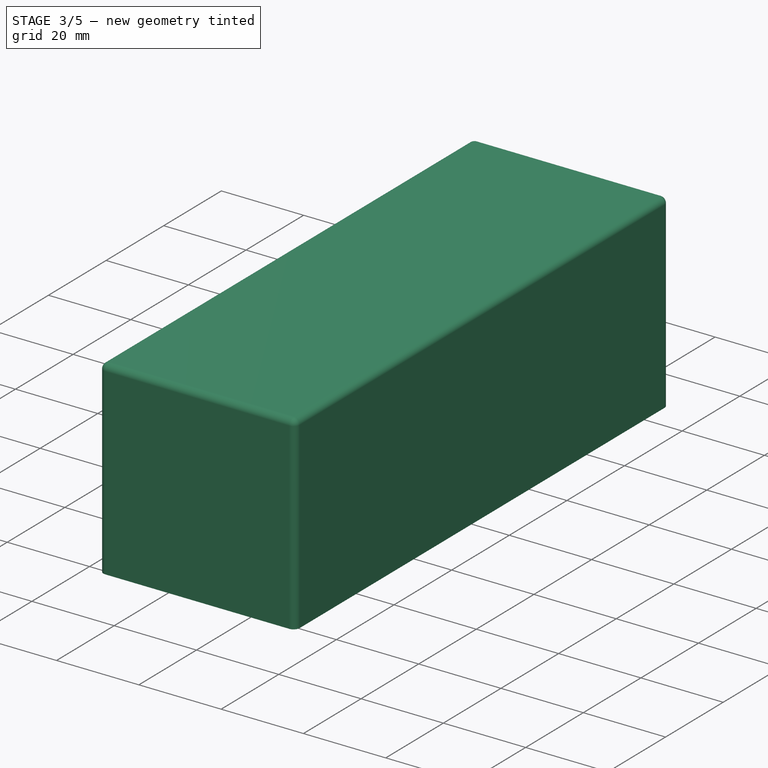
[diagram: stage 3 of 5 — iso view after this stage's code; geometry added in this stage tinted green]
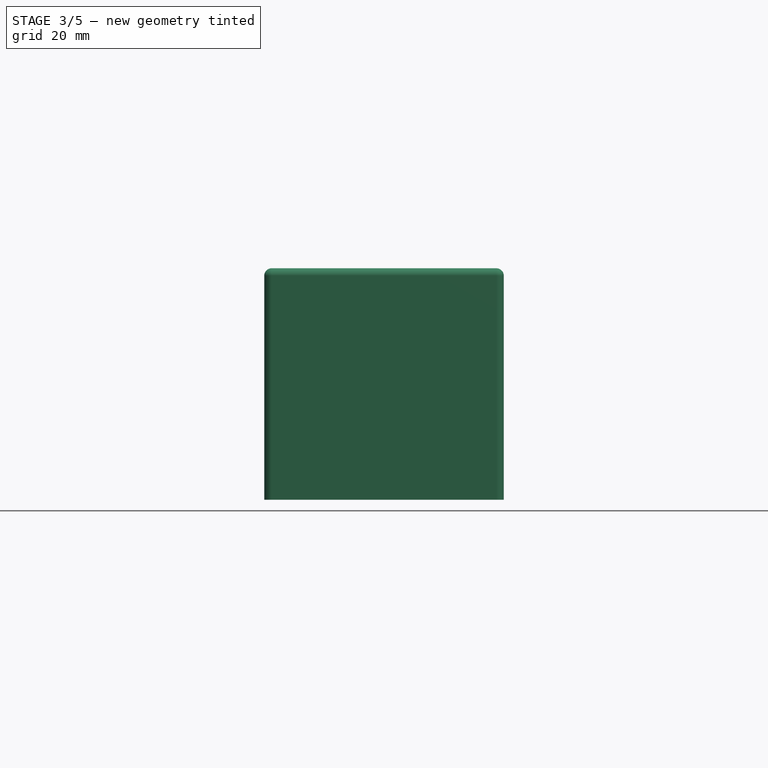
[diagram: stage 3 of 5 — front view after this stage's code; geometry added in this stage tinted green]
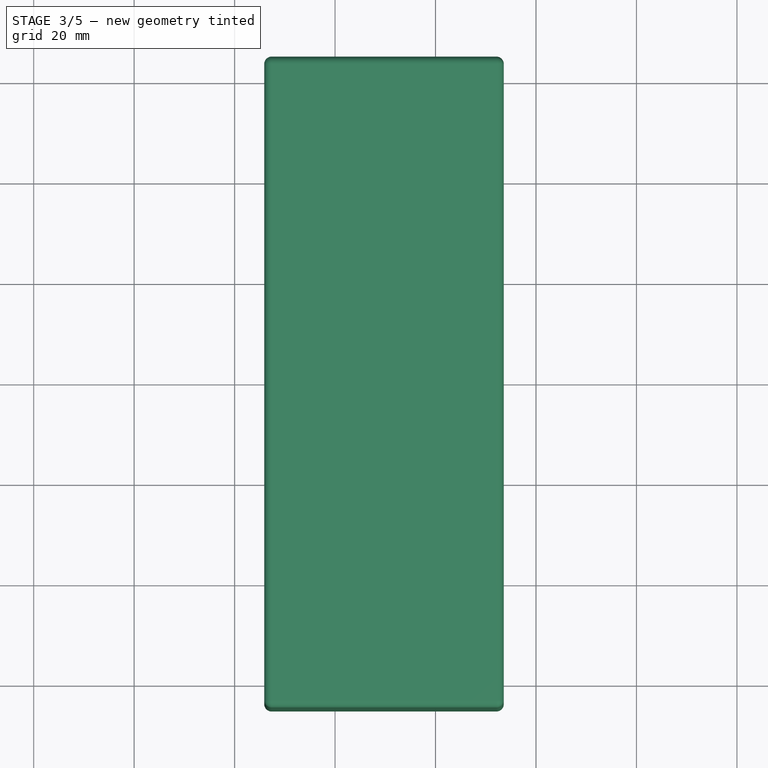
[diagram: stage 3 of 5 — top view after this stage's code; geometry added in this stage tinted green]
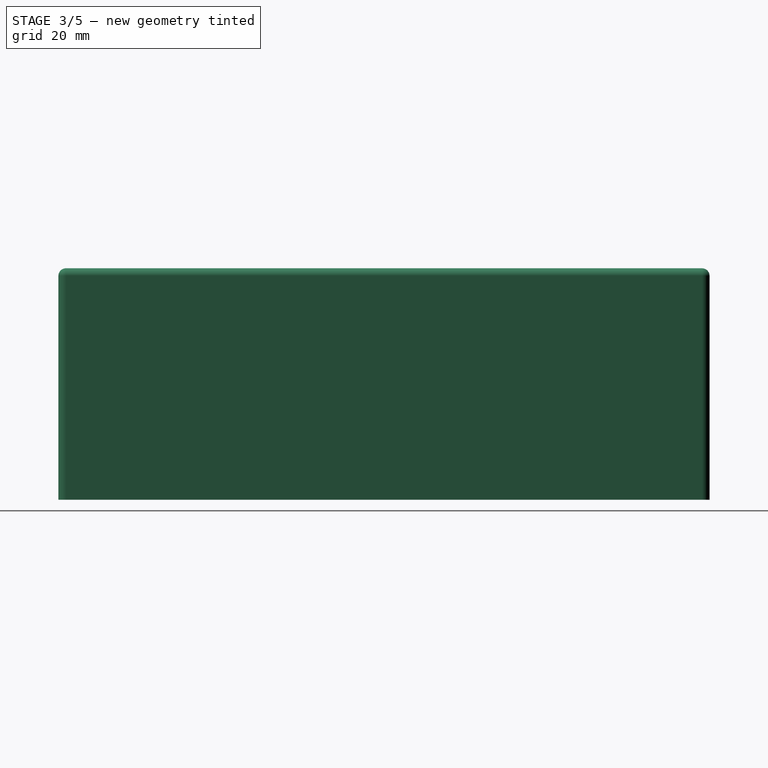
[diagram: stage 3 of 5 — right view after this stage's code; geometry added in this stage tinted green]
FEATURE [Sketcher::SketchObject] Sketch007
  FullyConstrained = false
  MapMode = 5
  Placement = pos=(9.5,3.8e-14,-1.37e-14) rot=(0.57735,0.57735,0.57735;2.0944rad)
  Support = -> [Pad005]
  sketch-geometry (2):
    g0: Circle CenterX=33.5085 CenterY=69.9285 CenterZ=0 NormalX=0 NormalY=0 NormalZ=1 AngleXU=0 Radius=1.75
    g1: Circle CenterX=-37.2942 CenterY=69.9285 CenterZ=0 NormalX=0 NormalY=0 NormalZ=1 AngleXU=0 Radius=1.75
  constraints (3):
    c: Horizontal(g1,g0)
    c: Diameter(g0) = 3.5
    c: Equal(g0,g1)
FEATURE [PartDesign::Pocket] Pocket002
  BaseFeature = -> Pad005
  Direction = (-1,-3.9e-15,3e-15)
  Length = 16
  Length2 = 5
  Placement = pos=(0,0,0) rot=(0.57735,0.57735,0.57735;2.0944rad)
  Profile = -> Sketch007
  ReferenceAxis = -> Sketch007 [N_Axis]
  Type = 0
FEATURE [PartDesign::Body] Body002  label="Upper_plate"
  Group = -> [ShapeBinder001,Sketch004,Pad003,Sketch005,Pocket001,Sketch006,Pad004,Pad005,Sketch007,Pocket002]
  Origin = -> Origin040
  Placement = pos=(0,0,-9) rot=(0,0,1;0rad)
  Tip = -> Pocket002
FEATURE [PartDesign::ShapeBinder] ShapeBinder002
  Placement = pos=(0,0,0) rot=(0.57735,0.57735,0.57735;2.0944rad)
  Support = -> [Pocket002]
  TraceSupport = false
FEATURE [Sketcher::SketchObject] Sketch008
  FullyConstrained = false
  MapMode = 5
  Placement = pos=(3.176e-13,-63.5688,-2.645e-13) rot=(0.57735,0.57735,-0.57735;2.0944rad)
  Support = -> [ShapeBinder002]
  sketch-geometry (4):
    g0: LineSegment StartX=-56.7799 StartY=32.0923 StartZ=0 EndX=-101.363 EndY=32.0923 EndZ=0
    g1: LineSegment StartX=-101.363 StartY=32.0923 StartZ=0 EndX=-101.363 EndY=-12.6077 EndZ=0
    g2: LineSegment StartX=-101.363 StartY=-12.6077 StartZ=0 EndX=-56.7799 EndY=-12.6077 EndZ=0
    g3: LineSegment StartX=-56.7799 StartY=-12.6077 StartZ=0 EndX=-56.7799 EndY=32.0923 EndZ=0
  constraints (9):
    c: Coincident(g0,g1)
    c: Coincident(g1,g2)
    c: Coincident(g2,g3)
    c: Coincident(g3,g0)
    c: Horizontal(g0)
    c: Horizontal(g2)
    c: Vertical(g1)
    c: Vertical(g3)
    c: DistanceY(g3,g3) = 44.7
FEATURE [PartDesign::Pad] Pad006
  Direction = (5.3e-15,-1,-4.4e-15)
  Length = 10
  Length2 = 10
  Offset = 1
  Placement = pos=(0,0,0) rot=(0.57735,0.57735,0.57735;2.0944rad)
  Profile = -> Sketch008
  ReferenceAxis = -> Sketch008 [N_Axis]
  Reversed = true
  Type = 3
  UpToFace = -> Pocket002 [Face5]
FEATURE [PartDesign::Thickness] Thickness
  Base = -> Pad006 [Face5]
  BaseFeature = -> Pad006
  Intersection = false
  Join = 0
  Mode = 0
  SupportTransform = false
  Value = 1.5
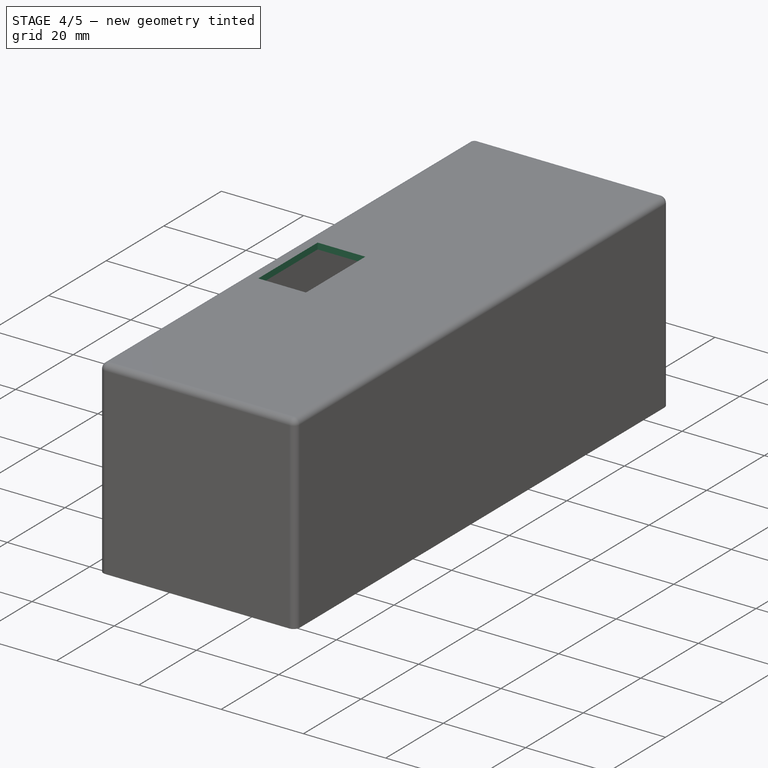
[diagram: stage 4 of 5 — iso view after this stage's code; geometry added in this stage tinted green]
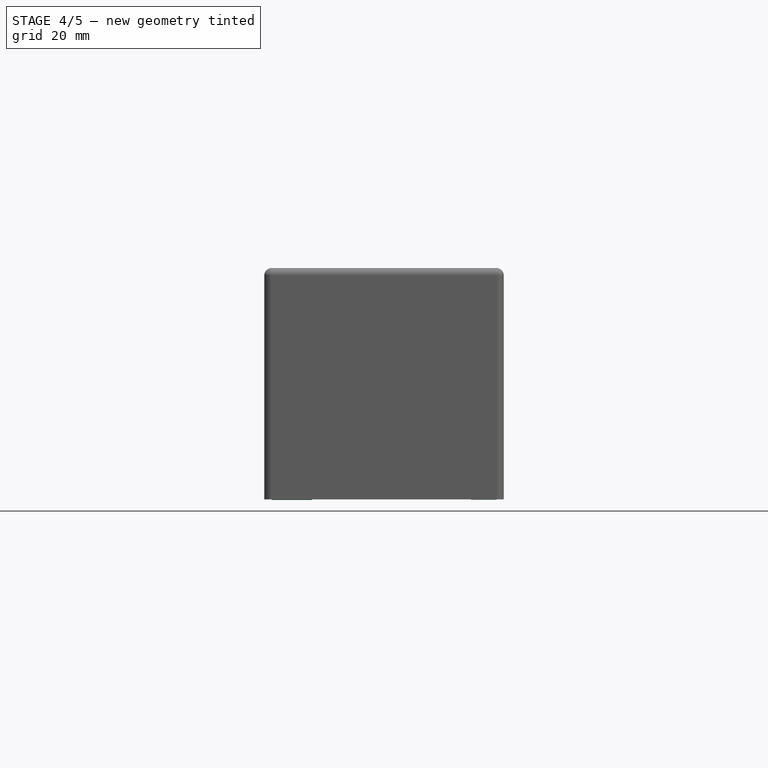
[diagram: stage 4 of 5 — front view after this stage's code; geometry added in this stage tinted green]
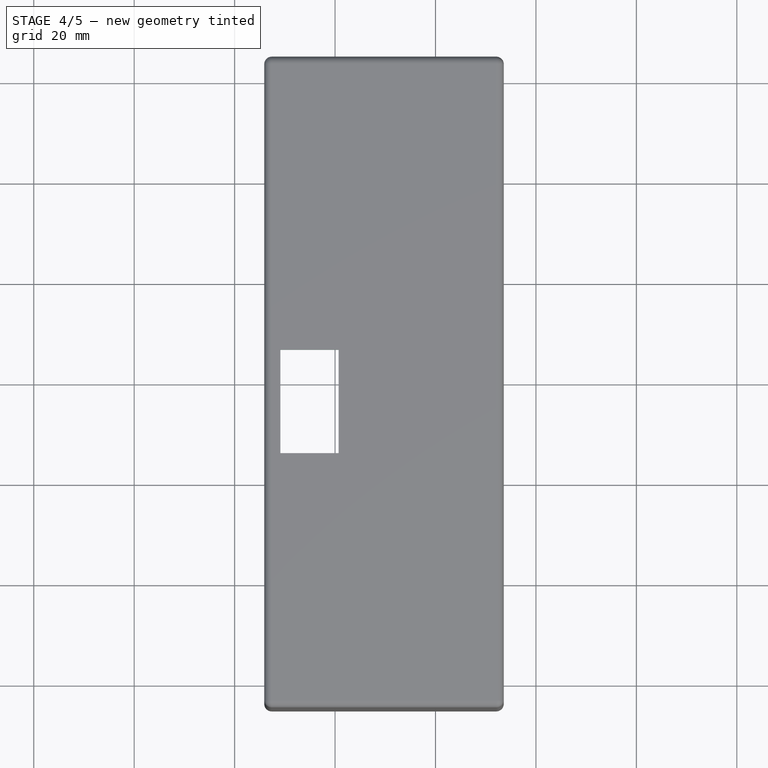
[diagram: stage 4 of 5 — top view after this stage's code; geometry added in this stage tinted green]
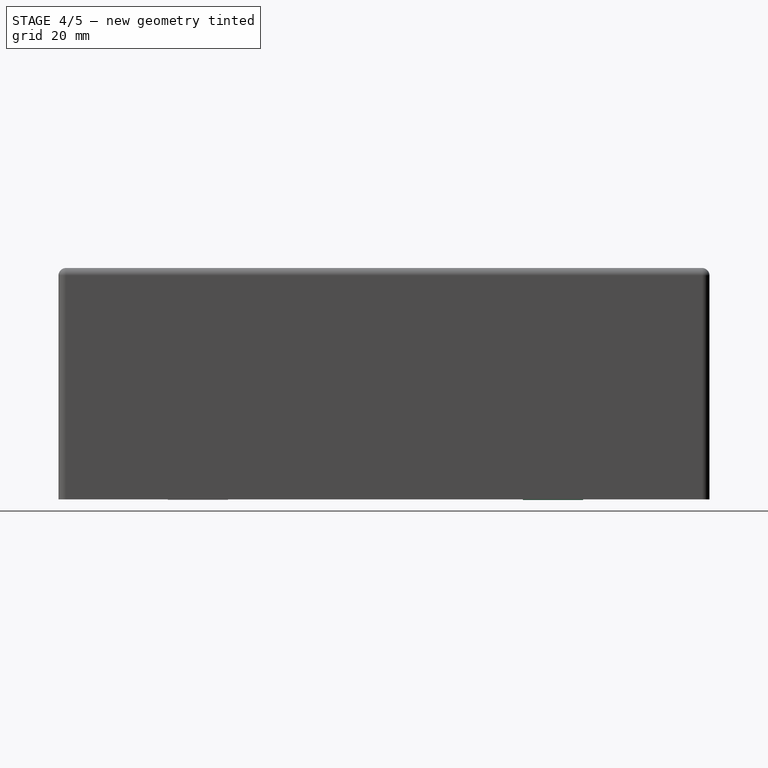
[diagram: stage 4 of 5 — right view after this stage's code; geometry added in this stage tinted green]
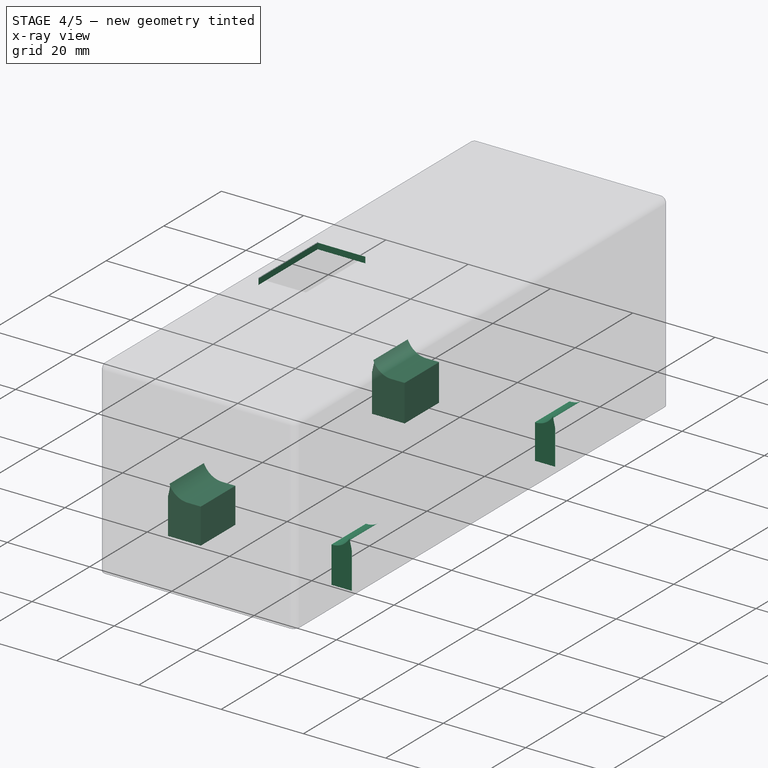
[diagram: stage 4 of 5 — x-ray composite at the iso view; earlier geometry ghosted, this stage's added geometry solid]
FEATURE [Sketcher::SketchObject] Sketch009
  FullyConstrained = false
  MapMode = 5
  Placement = pos=(-12.6077,-6.72e-14,4.06e-14) rot=(0.57735,0.57735,0.57735;2.0944rad)
  Support = -> [Thickness]
  sketch-geometry (8):
    g0: LineSegment StartX=-43.3745 StartY=56.8426 StartZ=0 EndX=-31.3745 EndY=56.8426 EndZ=0
    g1: LineSegment StartX=-31.3745 StartY=56.8426 StartZ=0 EndX=-31.3745 EndY=65.4478 EndZ=0
    g2: LineSegment StartX=-31.3745 StartY=65.4478 StartZ=0 EndX=-43.3745 EndY=65.4478 EndZ=0
    g3: LineSegment StartX=-43.3745 StartY=65.4478 StartZ=0 EndX=-43.3745 EndY=56.8426 EndZ=0
    g4: LineSegment StartX=27.3988 StartY=65.589 StartZ=0 EndX=39.3988 EndY=65.589 EndZ=0
    g5: LineSegment StartX=39.3988 StartY=65.589 StartZ=0 EndX=39.3988 EndY=56.6575 EndZ=0
    g6: LineSegment StartX=39.3988 StartY=56.6575 StartZ=0 EndX=27.3988 EndY=56.6575 EndZ=0
    g7: LineSegment StartX=27.3988 StartY=56.6575 StartZ=0 EndX=27.3988 EndY=65.589 EndZ=0
  constraints (18):
    c: Coincident(g0,g1)
    c: Coincident(g1,g2)
    c: Coincident(g2,g3)
    c: Coincident(g3,g0)
    c: Horizontal(g0)
    c: Horizontal(g2)
    c: Vertical(g1)
    c: Vertical(g3)
    c: Coincident(g4,g5)
    c: Coincident(g5,g6)
    c: Coincident(g6,g7)
    c: Coincident(g7,g4)
    c: Horizontal(g4)
    c: Horizontal(g6)
    c: Vertical(g5)
    c: Vertical(g7)
    c: DistanceX(g2,g2) = 12
    c: Equal(g2,g4)
FEATURE [PartDesign::Pad] Pad007
  BaseFeature = -> Thickness
  Direction = (1,5.2e-15,-3.2e-15)
  Length = 8
  Length2 = 10
  Profile = -> Sketch009
  ReferenceAxis = -> Sketch009 [N_Axis]
  Type = 0
FEATURE [Sketcher::SketchObject] Sketch010
  FullyConstrained = false
  MapMode = 5
  Placement = pos=(32.0923,1.711e-13,-1.033e-13) rot=(0.57735,-0.57735,-0.57735;2.0944rad)
  Support = -> [Pad007]
  sketch-geometry (8):
    g0: LineSegment StartX=-27.2838 StartY=65.4663 StartZ=0 EndX=-39.3838 EndY=65.4663 EndZ=0
    g1: LineSegment StartX=-39.3838 StartY=65.4663 StartZ=0 EndX=-39.3838 EndY=56.9901 EndZ=0
    g2: LineSegment StartX=-39.3838 StartY=56.9901 StartZ=0 EndX=-27.2838 EndY=56.9901 EndZ=0
    g3: LineSegment StartX=-27.2838 StartY=56.9901 StartZ=0 EndX=-27.2838 EndY=65.4663 EndZ=0
    g4: LineSegment StartX=43.3197 StartY=65.589 StartZ=0 EndX=31.3197 EndY=65.589 EndZ=0
    g5: LineSegment StartX=31.3197 StartY=65.589 StartZ=0 EndX=31.3197 EndY=56.7062 EndZ=0
    g6: LineSegment StartX=31.3197 StartY=56.7062 StartZ=0 EndX=43.3197 EndY=56.7062 EndZ=0
    g7: LineSegment StartX=43.3197 StartY=56.7062 StartZ=0 EndX=43.3197 EndY=65.589 EndZ=0
  constraints (18):
    c: Coincident(g0,g1)
    c: Coincident(g1,g2)
    c: Coincident(g2,g3)
    c: Coincident(g3,g0)
    c: Horizontal(g0)
    c: Horizontal(g2)
    c: Vertical(g1)
    c: Vertical(g3)
    c: Coincident(g4,g5)
    c: Coincident(g5,g6)
    c: Coincident(g6,g7)
    c: Coincident(g7,g4)
    c: Horizontal(g4)
    c: Horizontal(g6)
    c: Vertical(g5)
    c: Vertical(g7)
    c: DistanceX(g4,g4) = 12
    c: DistanceX(g0,g0) = 12.1
FEATURE [PartDesign::Pad] Pad008
  BaseFeature = -> Pad007
  Direction = (-1,-5.2e-15,3.2e-15)
  Length = 5
  Length2 = 10
  Profile = -> Sketch010
  ReferenceAxis = -> Sketch010 [N_Axis]
  Type = 0
FEATURE [PartDesign::Body] Body004  label="Lower_body"
  Group = -> [Sketch011,Pad009,Sketch013,Hole,Chamfer]
  Origin = -> Origin042
  Placement = pos=(32,0,0) rot=(0,0,1;0rad)
  Tip = -> Chamfer
FEATURE [Sketcher::SketchObject] Sketch014
  FullyConstrained = false
  MapMode = 5
  Placement = pos=(3.425e-13,-4.341e-13,102.863) rot=(0,0,1;0rad)
  Support = -> [Pad008]
  sketch-geometry (4):
    g0: LineSegment StartX=-10.8873 StartY=6.16419 StartZ=0 EndX=0.712713 EndY=6.16419 EndZ=0
    g1: LineSegment StartX=0.712713 StartY=6.16419 StartZ=0 EndX=0.712713 EndY=-14.4358 EndZ=0
    g2: LineSegment StartX=0.712713 StartY=-14.4358 StartZ=0 EndX=-10.8873 EndY=-14.4358 EndZ=0
    g3: LineSegment StartX=-10.8873 StartY=-14.4358 StartZ=0 EndX=-10.8873 EndY=6.16419 EndZ=0
  constraints (10):
    c: Coincident(g0,g1)
    c: Coincident(g1,g2)
    c: Coincident(g2,g3)
    c: Coincident(g3,g0)
    c: Horizontal(g0)
    c: Horizontal(g2)
    c: Vertical(g1)
    c: Vertical(g3)
    c: DistanceX(g0,g0) = 11.6
    c: DistanceY(g1,g1) = 20.6
FEATURE [PartDesign::Pocket] Pocket003
  BaseFeature = -> Pad008
  Direction = (-3.3e-15,4.2e-15,-1)
  Length = 5
  Length2 = 5
  Profile = -> Sketch014
  ReferenceAxis = -> Sketch014 [N_Axis]
  Type = 0
FEATURE [PartDesign::Fillet] Fillet
  Base = -> Pocket003 [Edge6,Edge12,Edge57,Edge54]
  BaseFeature = -> Pocket003
  Radius = 4.8
  SupportTransform = false
  UseAllEdges = false
FEATURE [PartDesign::Body] Body003  label="Cover"
  Group = -> [ShapeBinder002,Sketch008,Pad006,Thickness,Sketch009,Pad007,Sketch010,Pad008,Sketch014,Pocket003,Fillet]
  Origin = -> Origin041
  Tip = -> Fillet
FEATURE [App::Part] Part  label="robot_body"
  Group = -> [Body,Body002,Body003,Body004]
  Origin = -> Origin
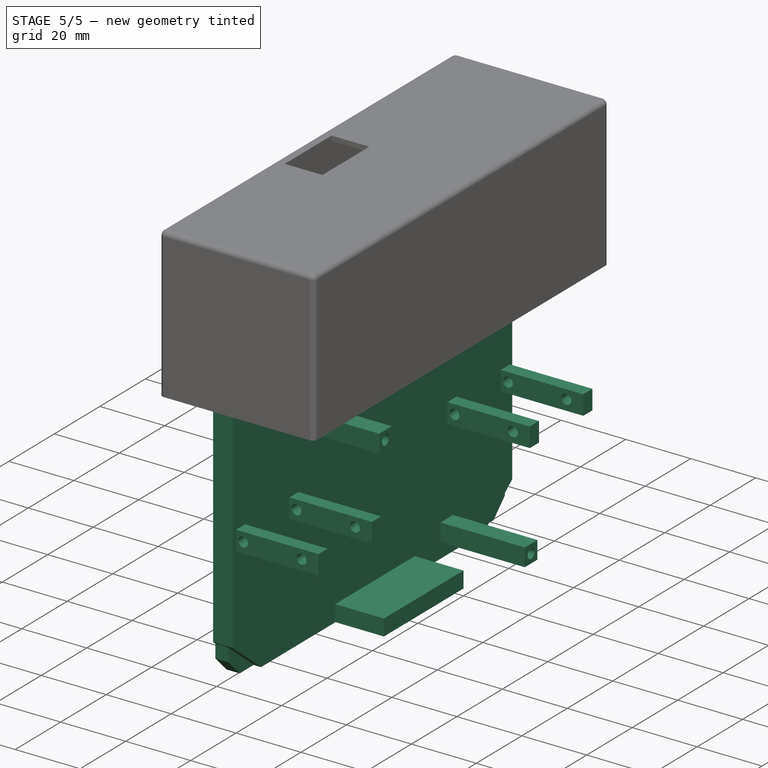
[diagram: stage 5 of 5 — iso view after this stage's code; geometry added in this stage tinted green]
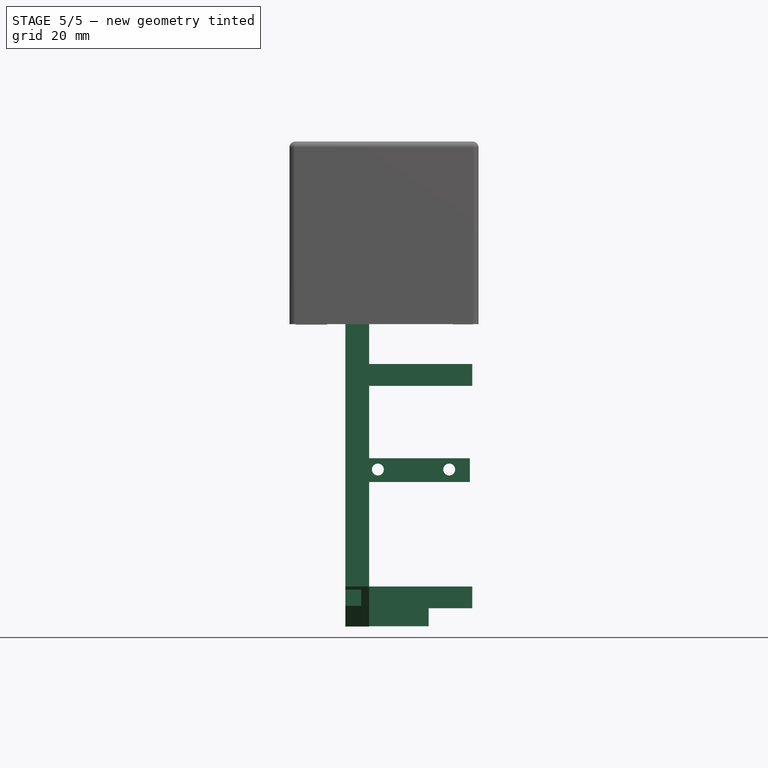
[diagram: stage 5 of 5 — front view after this stage's code; geometry added in this stage tinted green]
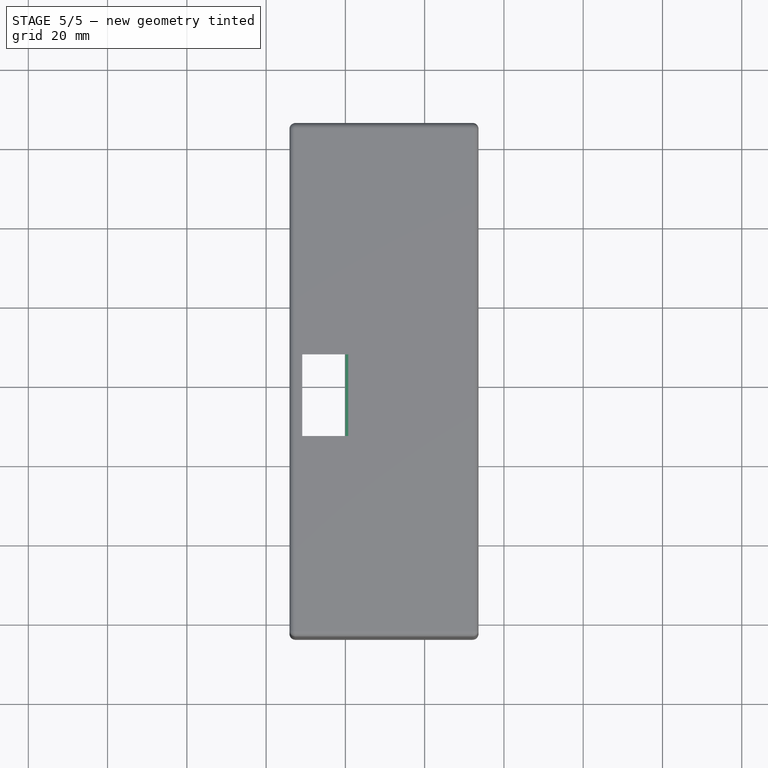
[diagram: stage 5 of 5 — top view after this stage's code; geometry added in this stage tinted green]
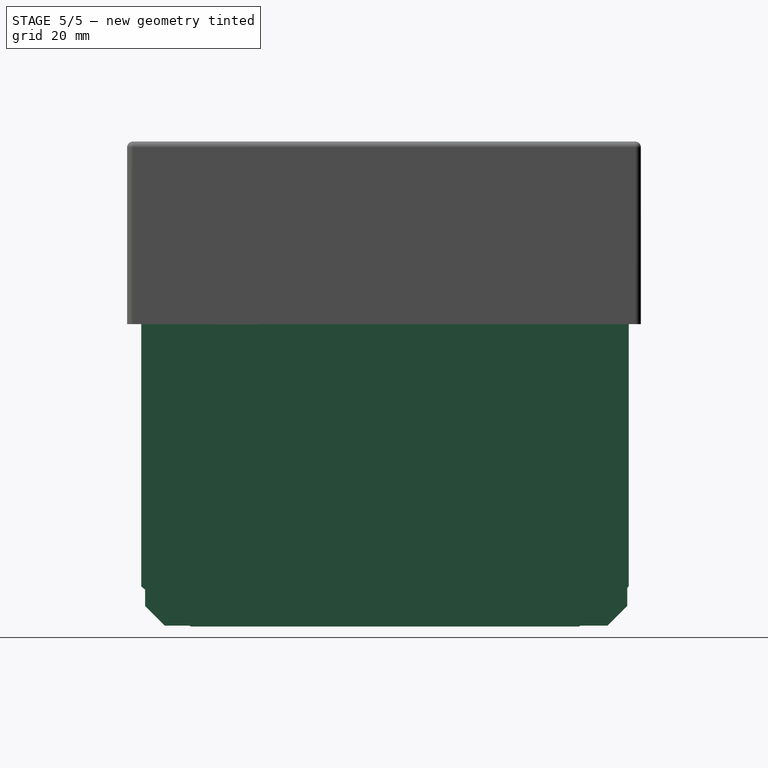
[diagram: stage 5 of 5 — right view after this stage's code; geometry added in this stage tinted green]
FEATURE [Sketcher::SketchObject] Sketch011
  FullyConstrained = false
  MapMode = 5
  Placement = pos=(0,0,0) rot=(0.57735,0.57735,0.57735;2.0944rad)
  Support = -> [YZ_Plane042]
  sketch-geometry (4):
    g0: LineSegment StartX=-60.5283 StartY=53.9706 StartZ=0 EndX=61.1257 EndY=53.9706 EndZ=0
    g1: LineSegment StartX=61.1257 StartY=53.9706 StartZ=0 EndX=61.1257 EndY=-19.2984 EndZ=0
    g2: LineSegment StartX=61.1257 StartY=-19.2984 StartZ=0 EndX=-60.5283 EndY=-19.2984 EndZ=0
    g3: LineSegment StartX=-60.5283 StartY=-19.2984 StartZ=0 EndX=-60.5283 EndY=53.9706 EndZ=0
  constraints (8):
    c: Coincident(g0,g1)
    c: Coincident(g1,g2)
    c: Coincident(g2,g3)
    c: Coincident(g3,g0)
    c: Horizontal(g0)
    c: Horizontal(g2)
    c: Vertical(g1)
    c: Vertical(g3)
FEATURE [PartDesign::Pad] Pad009
  Direction = (1,-2e-16,3e-16)
  Length = 4
  Length2 = 10
  Placement = pos=(0,0,0) rot=(0.57735,0.57735,0.57735;2.0944rad)
  Profile = -> Sketch011
  ReferenceAxis = -> Sketch011 [N_Axis]
  Type = 0
FEATURE [Sketcher::SketchObject] Sketch012
  FullyConstrained = false
  MapMode = 5
  Placement = pos=(6,-1.3e-15,1.3e-15) rot=(0.57735,0.57735,0.57735;2.0944rad)
  Support = -> [Pad002]
  sketch-geometry (10):
    g0: LineSegment StartX=-34.1111 StartY=46.7112 StartZ=0 EndX=-28.6111 EndY=46.7112 EndZ=0
    g1: LineSegment StartX=-28.6111 StartY=46.7112 StartZ=0 EndX=-28.6111 EndY=41.2112 EndZ=0
    g2: LineSegment StartX=-28.6111 StartY=41.2112 StartZ=0 EndX=-34.1111 EndY=41.2112 EndZ=0
    g3: LineSegment StartX=-34.1111 StartY=41.2112 StartZ=0 EndX=-34.1111 EndY=46.7112 EndZ=0
    g4: Circle CenterX=-31.3611 CenterY=43.9612 CenterZ=0 NormalX=0 NormalY=0 NormalZ=1 AngleXU=0 Radius=1.5
    g5: LineSegment StartX=29.9205 StartY=-9.40361 StartZ=0 EndX=35.4205 EndY=-9.40361 EndZ=0
    g6: LineSegment StartX=35.4205 StartY=-9.40361 StartZ=0 EndX=35.4205 EndY=-14.9036 EndZ=0
    g7: LineSegment StartX=35.4205 StartY=-14.9036 StartZ=0 EndX=29.9205 EndY=-14.9036 EndZ=0
    g8: LineSegment StartX=29.9205 StartY=-14.9036 StartZ=0 EndX=29.9205 EndY=-9.40361 EndZ=0
    g9: Circle CenterX=32.6705 CenterY=-12.1536 CenterZ=0 NormalX=0 NormalY=0 NormalZ=1 AngleXU=0 Radius=1.5
  constraints (24):
    c: Coincident(g0,g1)
    c: Coincident(g1,g2)
    c: Coincident(g2,g3)
    c: Coincident(g3,g0)
    c: Horizontal(g0)
    c: Horizontal(g2)
    c: Vertical(g1)
    c: Vertical(g3)
    c: Diameter(g4) = 3
    c: Symmetric(g1,g0,g4)
    c: DistanceX(g2,g2) = 5.5
    c: DistanceY(g1,g1) = 5.5
    c: Coincident(g5,g6)
    c: Coincident(g6,g7)
    c: Coincident(g7,g8)
    c: Coincident(g8,g5)
    c: Horizontal(g5)
    c: Horizontal(g7)
    c: Vertical(g6)
    c: Vertical(g8)
    c: Equal(g4,g9) = 3
    c: Symmetric(g6,g5,g9)
    c: Equal(g2,g7) = 5.5
    c: Equal(g1,g6) = 5.5
FEATURE [PartDesign::Pad] Pad010
  BaseFeature = -> Pad002
  Direction = (1,-1.1e-15,7e-16)
  Length = 26
  Length2 = 10
  Placement = pos=(0,0,0) rot=(0.57735,0.57735,0.57735;2.0944rad)
  Profile = -> Sketch012
  ReferenceAxis = -> Sketch012 [N_Axis]
  Type = 0
FEATURE [PartDesign::Body] Body  label="Base"
  Group = -> [Sketch,Pad,Sketch001,Pad001,ShapeBinder,Sketch002,Pocket,Sketch003,Pad002,Sketch012,Pad010]
  Origin = -> Origin038
  Tip = -> Pad010
FEATURE [Sketcher::SketchObject] Sketch013
  FullyConstrained = false
  MapMode = 5
  Placement = pos=(4,-9e-16,9e-16) rot=(0.57735,0.57735,0.57735;2.0944rad)
  Support = -> [Pad009]
  sketch-geometry (2):
    g0: Circle CenterX=-31.3944 CenterY=43.9435 CenterZ=0 NormalX=0 NormalY=0 NormalZ=1 AngleXU=0 Radius=1.48609
    g1: Circle CenterX=32.6934 CenterY=-12.1876 CenterZ=0 NormalX=0 NormalY=0 NormalZ=1 AngleXU=0 Radius=1.45077
FEATURE [PartDesign::Hole] Hole
  BaseFeature = -> Pad009
  CustomThreadClearance = 0
  Depth = 25
  DepthType = 0
  Diameter = 3
  DrillForDepth = false
  DrillPoint = 1
  DrillPointAngle = 118
  HoleCutCountersinkAngle = 90
  HoleCutCustomValues = false
  HoleCutDepth = 0.4
  HoleCutDiameter = 6.9
  HoleCutType = 2
  ModelThread = false
  Placement = pos=(0,0,0) rot=(0.57735,0.57735,0.57735;2.0944rad)
  Profile = -> Sketch013
  Tapered = false
  TaperedAngle = 90
  ThreadClass = 0
  ThreadDepth = 25
  ThreadDepthType = 0
  ThreadDirection = 0
  ThreadFit = 0
  ThreadSize = 0
  ThreadType = 0
  Threaded = false
  UseCustomThreadClearance = false
FEATURE [PartDesign::Chamfer] Chamfer
  Angle = 45
  Base = -> Hole [Edge1,Edge2,Edge5,Edge8]
  BaseFeature = -> Hole
  ChamferType = 0
  FlipDirection = false
  Placement = pos=(0,0,0) rot=(0.57735,0.57735,0.57735;2.0944rad)
  Size = 5
  Size2 = 1
  SupportTransform = false
  UseAllEdges = false
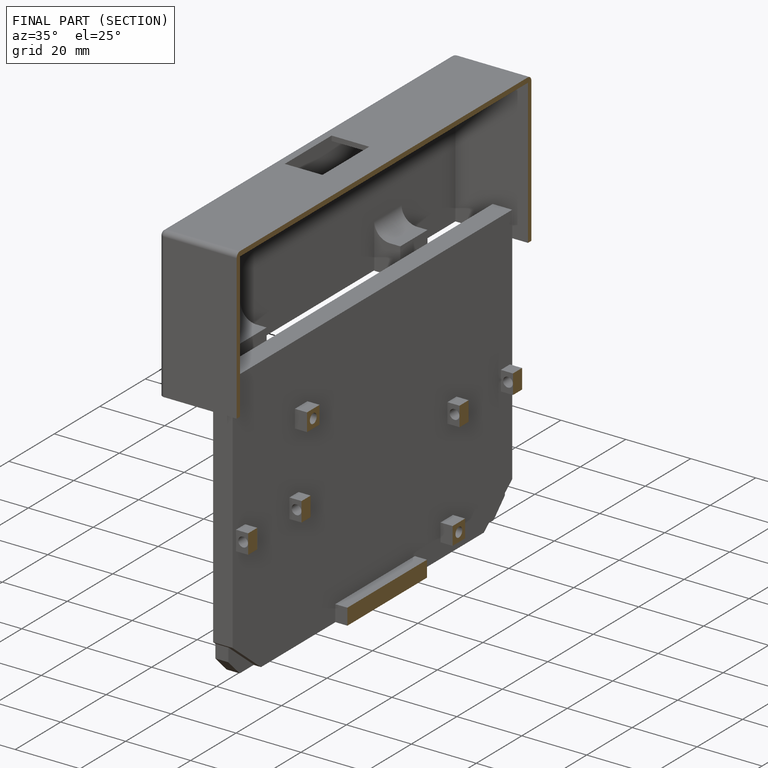
[diagram: finished part — half-section view (interior)]
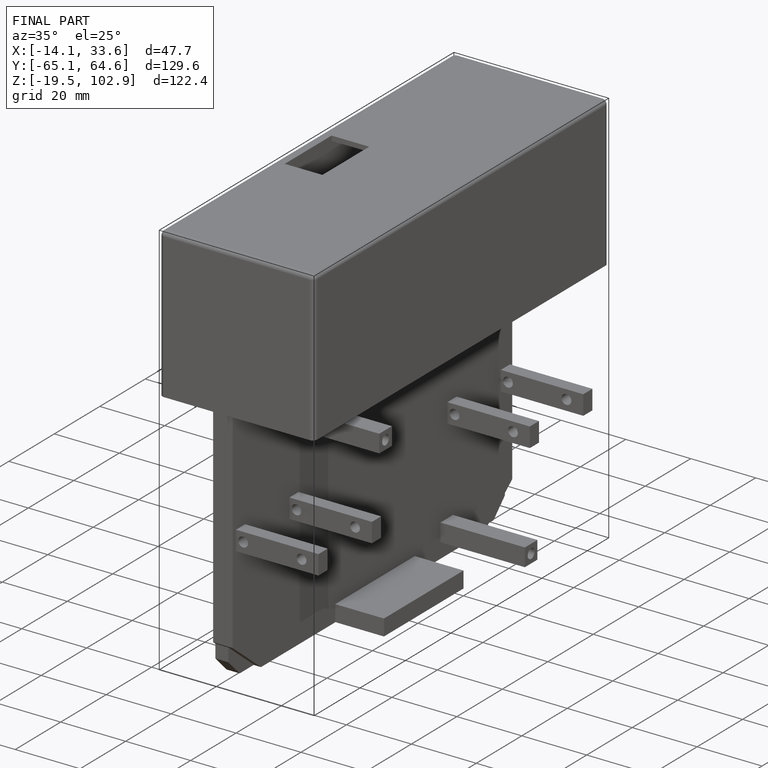
[diagram: finished part — iso view with bounding-box wireframe]
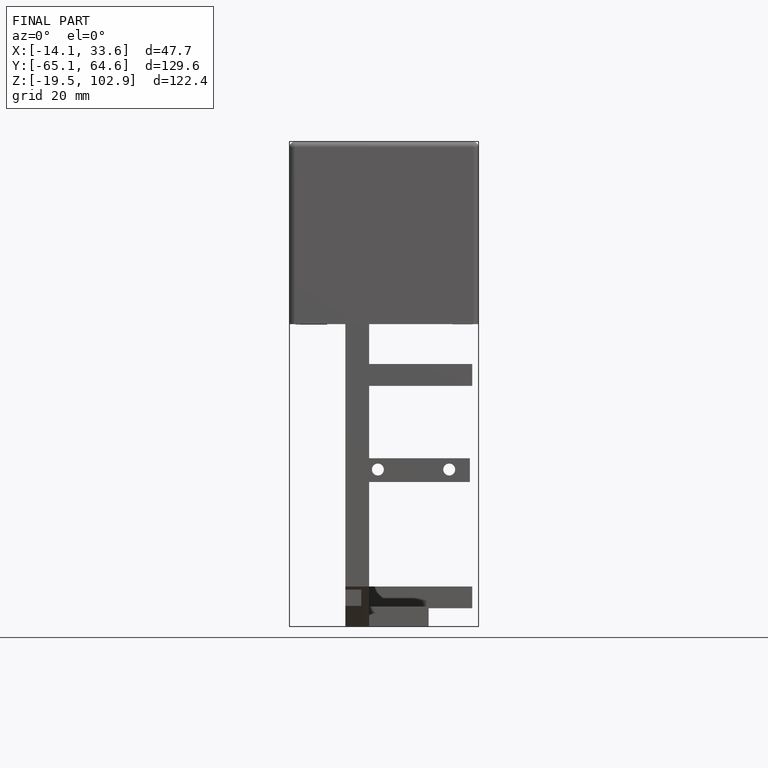
[diagram: finished part — front view with bounding-box wireframe]
